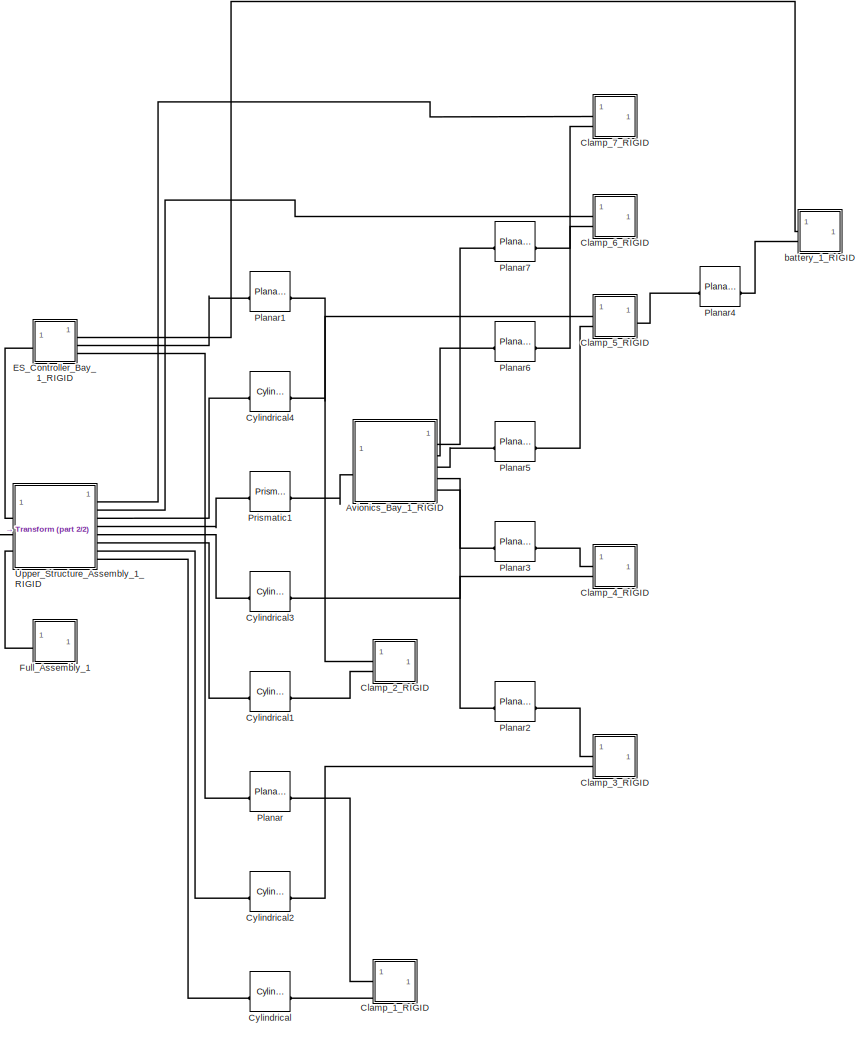
[diagram: root canvas - part 1/2, right side, full height]
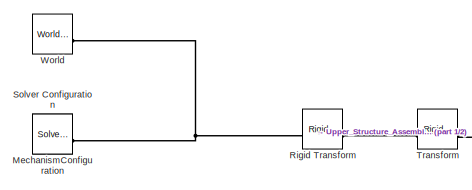
[diagram: root canvas - part 2/2, middle left region]
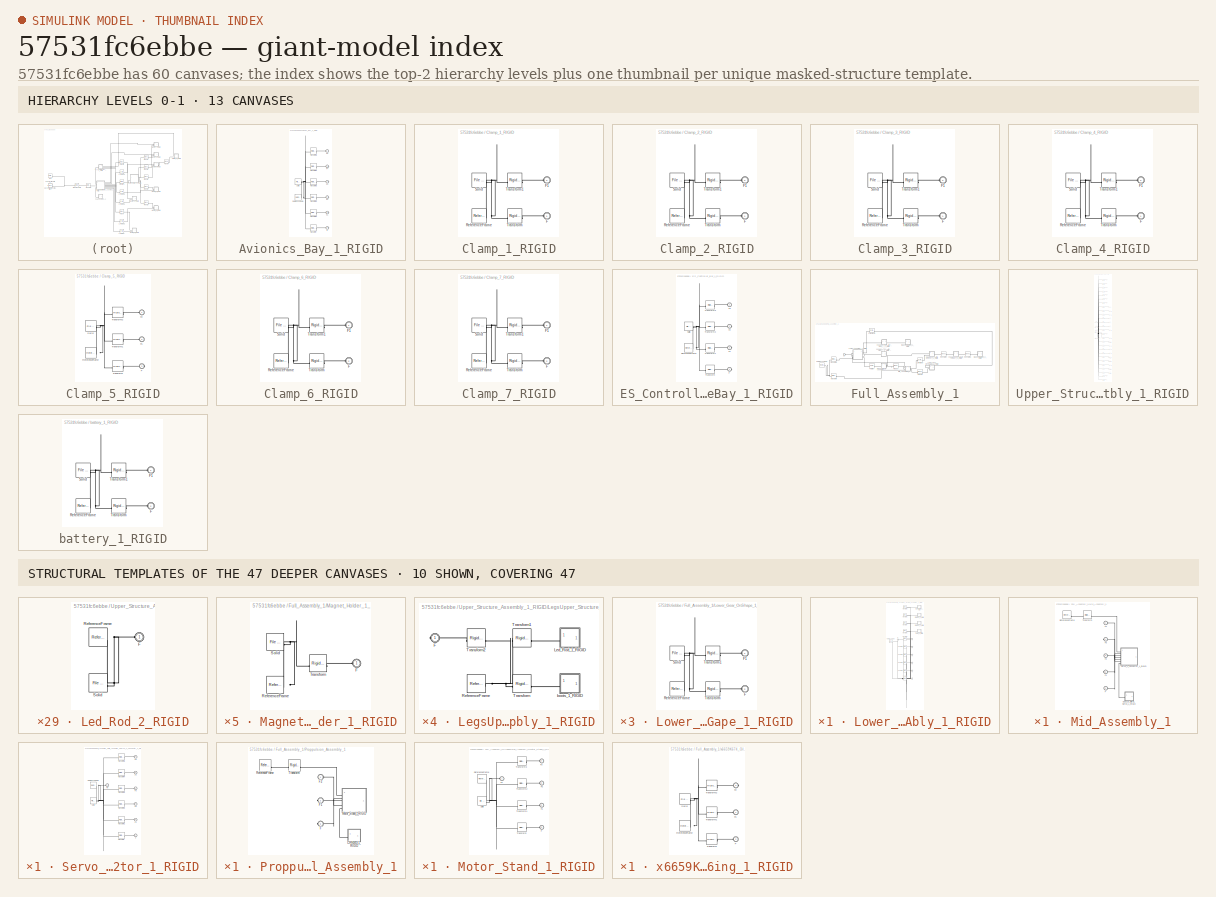
[diagram: thumbnail index - top-2 hierarchy levels (13 canvases) + 10 structural-template representatives of the remaining 47 canvases]
MODEL slx_57531fc6ebbe
KIND model
CONFIG AbsTol = auto
CONFIG EnableMultiTasking = off
CONFIG FixedStep = auto
CONFIG MaxStep = auto
CONFIG MinStep = auto
CONFIG RelTol = 1e-3
CONFIG SampleTimeConstraint = Unconstrained
CONFIG SolverName = VariableStepAuto
CONFIG StartTime = 0.0
CONFIG StopTime = 10.0
WORKSPACE source: external: MATLAB File  (data not in archive)
BLOCK [SubSystem] Avionics_Bay_1_RIGID
BLOCK [PMIOPort] Avionics_Bay_1_RIGID/F
  Port = 6
  Side = Right
BLOCK [PMIOPort] Avionics_Bay_1_RIGID/F1
  Port = 5
  Side = Right
BLOCK [PMIOPort] Avionics_Bay_1_RIGID/F2
  Port = 4
  Side = Right
BLOCK [PMIOPort] Avionics_Bay_1_RIGID/F3
  Port = 3
  Side = Right
BLOCK [PMIOPort] Avionics_Bay_1_RIGID/F4
  Port = 2
  Side = Right
BLOCK [PMIOPort] Avionics_Bay_1_RIGID/F5
  Side = Left
BLOCK [Reference] Avionics_Bay_1_RIGID/ReferenceFrame  REF=sm_lib/Frames and
Transforms/Reference
Frame
  SourceBlock = sm_lib/Frames and\nTransforms/Reference\nFrame
  SourceType = Reference\nFrame
BLOCK [Reference] Avionics_Bay_1_RIGID/Solid  REF=sm_lib/Body Elements/File Solid
  SourceBlock = sm_lib/Body Elements/File Solid
  SourceType = File Solid
BLOCK [Reference] Avionics_Bay_1_RIGID/Transform  REF=sm_lib/Frames and
Transforms/Rigid
Transform
  SourceBlock = sm_lib/Frames and\nTransforms/Rigid\nTransform
  SourceType = Rigid\nTransform
BLOCK [Reference] Avionics_Bay_1_RIGID/Transform1  REF=sm_lib/Frames and
Transforms/Rigid
Transform
  SourceBlock = sm_lib/Frames and\nTransforms/Rigid\nTransform
  SourceType = Rigid\nTransform
BLOCK [Reference] Avionics_Bay_1_RIGID/Transform2  REF=sm_lib/Frames and
Transforms/Rigid
Transform
  SourceBlock = sm_lib/Frames and\nTransforms/Rigid\nTransform
  SourceType = Rigid\nTransform
BLOCK [Reference] Avionics_Bay_1_RIGID/Transform3  REF=sm_lib/Frames and
Transforms/Rigid
Transform
  SourceBlock = sm_lib/Frames and\nTransforms/Rigid\nTransform
  SourceType = Rigid\nTransform
BLOCK [Reference] Avionics_Bay_1_RIGID/Transform4  REF=sm_lib/Frames and
Transforms/Rigid
Transform
  SourceBlock = sm_lib/Frames and\nTransforms/Rigid\nTransform
  SourceType = Rigid\nTransform
BLOCK [Reference] Avionics_Bay_1_RIGID/Transform5  REF=sm_lib/Frames and
Transforms/Rigid
Transform
  SourceBlock = sm_lib/Frames and\nTransforms/Rigid\nTransform
  SourceType = Rigid\nTransform
BLOCK [SubSystem] Clamp_1_RIGID
BLOCK [PMIOPort] Clamp_1_RIGID/F
  Side = Left
BLOCK [PMIOPort] Clamp_1_RIGID/F1
  Port = 2
  Side = Left
BLOCK [Reference] Clamp_1_RIGID/ReferenceFrame  REF=sm_lib/Frames and
Transforms/Reference
Frame
  SourceBlock = sm_lib/Frames and\nTransforms/Reference\nFrame
  SourceType = Reference\nFrame
BLOCK [Reference] Clamp_1_RIGID/Solid  REF=sm_lib/Body Elements/File Solid
  SourceBlock = sm_lib/Body Elements/File Solid
  SourceType = File Solid
BLOCK [Reference] Clamp_1_RIGID/Transform  REF=sm_lib/Frames and
Transforms/Rigid
Transform
  SourceBlock = sm_lib/Frames and\nTransforms/Rigid\nTransform
  SourceType = Rigid\nTransform
BLOCK [Reference] Clamp_1_RIGID/Transform1  REF=sm_lib/Frames and
Transforms/Rigid
Transform
  SourceBlock = sm_lib/Frames and\nTransforms/Rigid\nTransform
  SourceType = Rigid\nTransform
BLOCK [SubSystem] Clamp_2_RIGID
BLOCK [PMIOPort] Clamp_2_RIGID/F
  Side = Left
BLOCK [PMIOPort] Clamp_2_RIGID/F1
  Port = 2
  Side = Left
BLOCK [Reference] Clamp_2_RIGID/ReferenceFrame  REF=sm_lib/Frames and
Transforms/Reference
Frame
  SourceBlock = sm_lib/Frames and\nTransforms/Reference\nFrame
  SourceType = Reference\nFrame
BLOCK [Reference] Clamp_2_RIGID/Solid  REF=sm_lib/Body Elements/File Solid
  SourceBlock = sm_lib/Body Elements/File Solid
  SourceType = File Solid
BLOCK [Reference] Clamp_2_RIGID/Transform  REF=sm_lib/Frames and
Transforms/Rigid
Transform
  SourceBlock = sm_lib/Frames and\nTransforms/Rigid\nTransform
  SourceType = Rigid\nTransform
BLOCK [Reference] Clamp_2_RIGID/Transform1  REF=sm_lib/Frames and
Transforms/Rigid
Transform
  SourceBlock = sm_lib/Frames and\nTransforms/Rigid\nTransform
  SourceType = Rigid\nTransform
BLOCK [SubSystem] Clamp_3_RIGID
BLOCK [PMIOPort] Clamp_3_RIGID/F
  Side = Left
BLOCK [PMIOPort] Clamp_3_RIGID/F1
  Port = 2
  Side = Left
BLOCK [Reference] Clamp_3_RIGID/ReferenceFrame  REF=sm_lib/Frames and
Transforms/Reference
Frame
  SourceBlock = sm_lib/Frames and\nTransforms/Reference\nFrame
  SourceType = Reference\nFrame
BLOCK [Reference] Clamp_3_RIGID/Solid  REF=sm_lib/Body Elements/File Solid
  SourceBlock = sm_lib/Body Elements/File Solid
  SourceType = File Solid
BLOCK [Reference] Clamp_3_RIGID/Transform  REF=sm_lib/Frames and
Transforms/Rigid
Transform
  SourceBlock = sm_lib/Frames and\nTransforms/Rigid\nTransform
  SourceType = Rigid\nTransform
BLOCK [Reference] Clamp_3_RIGID/Transform1  REF=sm_lib/Frames and
Transforms/Rigid
Transform
  SourceBlock = sm_lib/Frames and\nTransforms/Rigid\nTransform
  SourceType = Rigid\nTransform
BLOCK [SubSystem] Clamp_4_RIGID
BLOCK [PMIOPort] Clamp_4_RIGID/F
  Side = Left
BLOCK [PMIOPort] Clamp_4_RIGID/F1
  Port = 2
  Side = Left
BLOCK [Reference] Clamp_4_RIGID/ReferenceFrame  REF=sm_lib/Frames and
Transforms/Reference
Frame
  SourceBlock = sm_lib/Frames and\nTransforms/Reference\nFrame
  SourceType = Reference\nFrame
BLOCK [Reference] Clamp_4_RIGID/Solid  REF=sm_lib/Body Elements/File Solid
  SourceBlock = sm_lib/Body Elements/File Solid
  SourceType = File Solid
BLOCK [Reference] Clamp_4_RIGID/Transform  REF=sm_lib/Frames and
Transforms/Rigid
Transform
  SourceBlock = sm_lib/Frames and\nTransforms/Rigid\nTransform
  SourceType = Rigid\nTransform
BLOCK [Reference] Clamp_4_RIGID/Transform1  REF=sm_lib/Frames and
Transforms/Rigid
Transform
  SourceBlock = sm_lib/Frames and\nTransforms/Rigid\nTransform
  SourceType = Rigid\nTransform
BLOCK [SubSystem] Clamp_5_RIGID
BLOCK [PMIOPort] Clamp_5_RIGID/F
  Port = 3
  Side = Right
BLOCK [PMIOPort] Clamp_5_RIGID/F1
  Port = 2
  Side = Left
BLOCK [PMIOPort] Clamp_5_RIGID/F2
  Side = Left
BLOCK [Reference] Clamp_5_RIGID/ReferenceFrame  REF=sm_lib/Frames and
Transforms/Reference
Frame
  SourceBlock = sm_lib/Frames and\nTransforms/Reference\nFrame
  SourceType = Reference\nFrame
BLOCK [Reference] Clamp_5_RIGID/Solid  REF=sm_lib/Body Elements/File Solid
  SourceBlock = sm_lib/Body Elements/File Solid
  SourceType = File Solid
BLOCK [Reference] Clamp_5_RIGID/Transform  REF=sm_lib/Frames and
Transforms/Rigid
Transform
  SourceBlock = sm_lib/Frames and\nTransforms/Rigid\nTransform
  SourceType = Rigid\nTransform
BLOCK [Reference] Clamp_5_RIGID/Transform1  REF=sm_lib/Frames and
Transforms/Rigid
Transform
  SourceBlock = sm_lib/Frames and\nTransforms/Rigid\nTransform
  SourceType = Rigid\nTransform
BLOCK [Reference] Clamp_5_RIGID/Transform2  REF=sm_lib/Frames and
Transforms/Rigid
Transform
  SourceBlock = sm_lib/Frames and\nTransforms/Rigid\nTransform
  SourceType = Rigid\nTransform
BLOCK [SubSystem] Clamp_6_RIGID
BLOCK [PMIOPort] Clamp_6_RIGID/F
  Port = 2
  Side = Left
BLOCK [PMIOPort] Clamp_6_RIGID/F1
  Side = Left
BLOCK [Reference] Clamp_6_RIGID/ReferenceFrame  REF=sm_lib/Frames and
Transforms/Reference
Frame
  SourceBlock = sm_lib/Frames and\nTransforms/Reference\nFrame
  SourceType = Reference\nFrame
BLOCK [Reference] Clamp_6_RIGID/Solid  REF=sm_lib/Body Elements/File Solid
  SourceBlock = sm_lib/Body Elements/File Solid
  SourceType = File Solid
BLOCK [Reference] Clamp_6_RIGID/Transform  REF=sm_lib/Frames and
Transforms/Rigid
Transform
  SourceBlock = sm_lib/Frames and\nTransforms/Rigid\nTransform
  SourceType = Rigid\nTransform
BLOCK [Reference] Clamp_6_RIGID/Transform1  REF=sm_lib/Frames and
Transforms/Rigid
Transform
  SourceBlock = sm_lib/Frames and\nTransforms/Rigid\nTransform
  SourceType = Rigid\nTransform
BLOCK [SubSystem] Clamp_7_RIGID
BLOCK [PMIOPort] Clamp_7_RIGID/F
  Port = 2
  Side = Left
BLOCK [PMIOPort] Clamp_7_RIGID/F1
  Side = Left
BLOCK [Reference] Clamp_7_RIGID/ReferenceFrame  REF=sm_lib/Frames and
Transforms/Reference
Frame
  SourceBlock = sm_lib/Frames and\nTransforms/Reference\nFrame
  SourceType = Reference\nFrame
BLOCK [Reference] Clamp_7_RIGID/Solid  REF=sm_lib/Body Elements/File Solid
  SourceBlock = sm_lib/Body Elements/File Solid
  SourceType = File Solid
BLOCK [Reference] Clamp_7_RIGID/Transform  REF=sm_lib/Frames and
Transforms/Rigid
Transform
  SourceBlock = sm_lib/Frames and\nTransforms/Rigid\nTransform
  SourceType = Rigid\nTransform
BLOCK [Reference] Clamp_7_RIGID/Transform1  REF=sm_lib/Frames and
Transforms/Rigid
Transform
  SourceBlock = sm_lib/Frames and\nTransforms/Rigid\nTransform
  SourceType = Rigid\nTransform
BLOCK [Reference] Cylindrical  REF=sm_lib/Joints/Cylindrical
Joint
  SourceBlock = sm_lib/Joints/Cylindrical\nJoint
  SourceType = Cylindrical\nJoint
BLOCK [Reference] Cylindrical1  REF=sm_lib/Joints/Cylindrical
Joint
  SourceBlock = sm_lib/Joints/Cylindrical\nJoint
  SourceType = Cylindrical\nJoint
BLOCK [Reference] Cylindrical2  REF=sm_lib/Joints/Cylindrical
Joint
  SourceBlock = sm_lib/Joints/Cylindrical\nJoint
  SourceType = Cylindrical\nJoint
BLOCK [Reference] Cylindrical3  REF=sm_lib/Joints/Cylindrical
Joint
  SourceBlock = sm_lib/Joints/Cylindrical\nJoint
  SourceType = Cylindrical\nJoint
BLOCK [Reference] Cylindrical4  REF=sm_lib/Joints/Cylindrical
Joint
  SourceBlock = sm_lib/Joints/Cylindrical\nJoint
  SourceType = Cylindrical\nJoint
BLOCK [SubSystem] ES_Controller_Bay_1_RIGID
BLOCK [PMIOPort] ES_Controller_Bay_1_RIGID/F
  Port = 4
  Side = Right
BLOCK [PMIOPort] ES_Controller_Bay_1_RIGID/F1
  Port = 3
  Side = Right
BLOCK [PMIOPort] ES_Controller_Bay_1_RIGID/F2
  Port = 2
  Side = Right
BLOCK [PMIOPort] ES_Controller_Bay_1_RIGID/F3
  Side = Left
BLOCK [Reference] ES_Controller_Bay_1_RIGID/ReferenceFrame  REF=sm_lib/Frames and
Transforms/Reference
Frame
  SourceBlock = sm_lib/Frames and\nTransforms/Reference\nFrame
  SourceType = Reference\nFrame
BLOCK [Reference] ES_Controller_Bay_1_RIGID/Solid  REF=sm_lib/Body Elements/File Solid
  SourceBlock = sm_lib/Body Elements/File Solid
  SourceType = File Solid
BLOCK [Reference] ES_Controller_Bay_1_RIGID/Transform  REF=sm_lib/Frames and
Transforms/Rigid
Transform
  SourceBlock = sm_lib/Frames and\nTransforms/Rigid\nTransform
  SourceType = Rigid\nTransform
BLOCK [Reference] ES_Controller_Bay_1_RIGID/Transform1  REF=sm_lib/Frames and
Transforms/Rigid
Transform
  SourceBlock = sm_lib/Frames and\nTransforms/Rigid\nTransform
  SourceType = Rigid\nTransform
BLOCK [Reference] ES_Controller_Bay_1_RIGID/Transform2  REF=sm_lib/Frames and
Transforms/Rigid
Transform
  SourceBlock = sm_lib/Frames and\nTransforms/Rigid\nTransform
  SourceType = Rigid\nTransform
BLOCK [Reference] ES_Controller_Bay_1_RIGID/Transform3  REF=sm_lib/Frames and
Transforms/Rigid
Transform
  SourceBlock = sm_lib/Frames and\nTransforms/Rigid\nTransform
  SourceType = Rigid\nTransform
BLOCK [SubSystem] Full_Assembly_1
BLOCK [Reference] Full_Assembly_1/Cylindrical  REF=sm_lib/Joints/Cylindrical
Joint
  SourceBlock = sm_lib/Joints/Cylindrical\nJoint
  SourceType = Cylindrical\nJoint
BLOCK [Reference] Full_Assembly_1/Cylindrical1  REF=sm_lib/Joints/Cylindrical
Joint
  SourceBlock = sm_lib/Joints/Cylindrical\nJoint
  SourceType = Cylindrical\nJoint
BLOCK [PMIOPort] Full_Assembly_1/F
  Side = Left
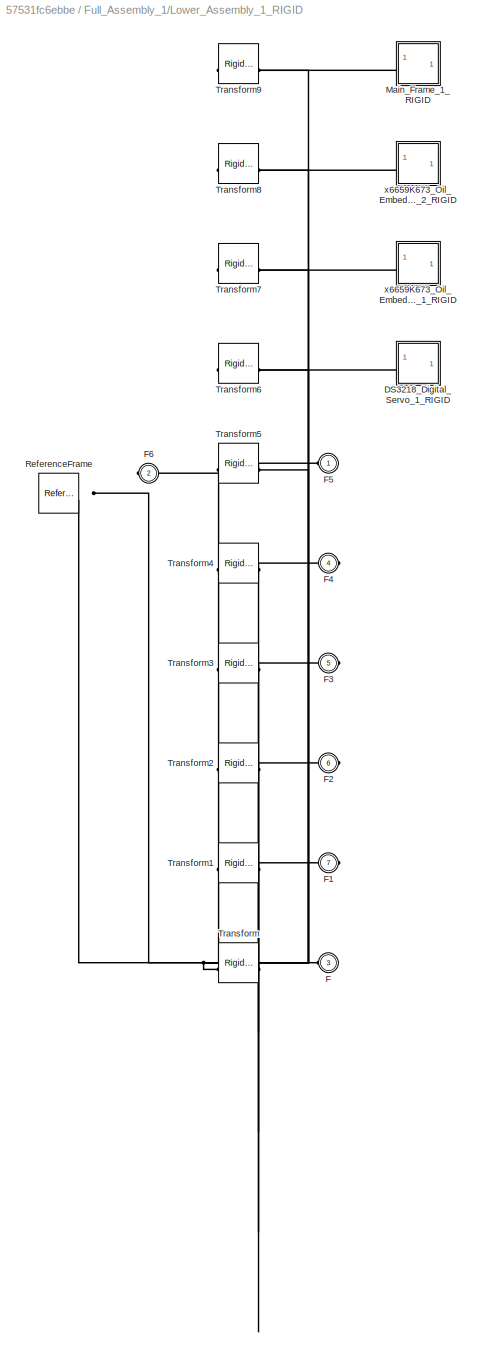
BLOCK [SubSystem] Full_Assembly_1/Lower_Assembly_1_RIGID
BLOCK [SubSystem] Full_Assembly_1/Lower_Assembly_1_RIGID/DS3218_Digital_Servo_1_RIGID
BLOCK [PMIOPort] Full_Assembly_1/Lower_Assembly_1_RIGID/DS3218_Digital_Servo_1_RIGID/F
  Side = Left
BLOCK [Reference] Full_Assembly_1/Lower_Assembly_1_RIGID/DS3218_Digital_Servo_1_RIGID/ReferenceFrame  REF=sm_lib/Frames and
Transforms/Reference
Frame
  SourceBlock = sm_lib/Frames and\nTransforms/Reference\nFrame
  SourceType = Reference\nFrame
BLOCK [Reference] Full_Assembly_1/Lower_Assembly_1_RIGID/DS3218_Digital_Servo_1_RIGID/Solid  REF=sm_lib/Body Elements/File Solid
  SourceBlock = sm_lib/Body Elements/File Solid
  SourceType = File Solid
BLOCK [PMIOPort] Full_Assembly_1/Lower_Assembly_1_RIGID/F
  Port = 3
  Side = Left
BLOCK [PMIOPort] Full_Assembly_1/Lower_Assembly_1_RIGID/F1
  Port = 7
  Side = Right
BLOCK [PMIOPort] Full_Assembly_1/Lower_Assembly_1_RIGID/F2
  Port = 6
  Side = Right
BLOCK [PMIOPort] Full_Assembly_1/Lower_Assembly_1_RIGID/F3
  Port = 5
  Side = Right
BLOCK [PMIOPort] Full_Assembly_1/Lower_Assembly_1_RIGID/F4
  Port = 4
  Side = Right
BLOCK [PMIOPort] Full_Assembly_1/Lower_Assembly_1_RIGID/F5
  Side = Left
BLOCK [PMIOPort] Full_Assembly_1/Lower_Assembly_1_RIGID/F6
  Port = 2
  Side = Left
BLOCK [SubSystem] Full_Assembly_1/Lower_Assembly_1_RIGID/Main_Frame_1_RIGID
BLOCK [PMIOPort] Full_Assembly_1/Lower_Assembly_1_RIGID/Main_Frame_1_RIGID/F
  Side = Left
BLOCK [Reference] Full_Assembly_1/Lower_Assembly_1_RIGID/Main_Frame_1_RIGID/ReferenceFrame  REF=sm_lib/Frames and
Transforms/Reference
Frame
  SourceBlock = sm_lib/Frames and\nTransforms/Reference\nFrame
  SourceType = Reference\nFrame
BLOCK [Reference] Full_Assembly_1/Lower_Assembly_1_RIGID/Main_Frame_1_RIGID/Solid  REF=sm_lib/Body Elements/File Solid
  SourceBlock = sm_lib/Body Elements/File Solid
  SourceType = File Solid
BLOCK [Reference] Full_Assembly_1/Lower_Assembly_1_RIGID/ReferenceFrame  REF=sm_lib/Frames and
Transforms/Reference
Frame
  SourceBlock = sm_lib/Frames and\nTransforms/Reference\nFrame
  SourceType = Reference\nFrame
BLOCK [Reference] Full_Assembly_1/Lower_Assembly_1_RIGID/Transform  REF=sm_lib/Frames and
Transforms/Rigid
Transform
  SourceBlock = sm_lib/Frames and\nTransforms/Rigid\nTransform
  SourceType = Rigid\nTransform
BLOCK [Reference] Full_Assembly_1/Lower_Assembly_1_RIGID/Transform1  REF=sm_lib/Frames and
Transforms/Rigid
Transform
  SourceBlock = sm_lib/Frames and\nTransforms/Rigid\nTransform
  SourceType = Rigid\nTransform
BLOCK [Reference] Full_Assembly_1/Lower_Assembly_1_RIGID/Transform2  REF=sm_lib/Frames and
Transforms/Rigid
Transform
  SourceBlock = sm_lib/Frames and\nTransforms/Rigid\nTransform
  SourceType = Rigid\nTransform
BLOCK [Reference] Full_Assembly_1/Lower_Assembly_1_RIGID/Transform3  REF=sm_lib/Frames and
Transforms/Rigid
Transform
  SourceBlock = sm_lib/Frames and\nTransforms/Rigid\nTransform
  SourceType = Rigid\nTransform
BLOCK [Reference] Full_Assembly_1/Lower_Assembly_1_RIGID/Transform4  REF=sm_lib/Frames and
Transforms/Rigid
Transform
  SourceBlock = sm_lib/Frames and\nTransforms/Rigid\nTransform
  SourceType = Rigid\nTransform
BLOCK [Reference] Full_Assembly_1/Lower_Assembly_1_RIGID/Transform5  REF=sm_lib/Frames and
Transforms/Rigid
Transform
  SourceBlock = sm_lib/Frames and\nTransforms/Rigid\nTransform
  SourceType = Rigid\nTransform
BLOCK [Reference] Full_Assembly_1/Lower_Assembly_1_RIGID/Transform6  REF=sm_lib/Frames and
Transforms/Rigid
Transform
  SourceBlock = sm_lib/Frames and\nTransforms/Rigid\nTransform
  SourceType = Rigid\nTransform
BLOCK [Reference] Full_Assembly_1/Lower_Assembly_1_RIGID/Transform7  REF=sm_lib/Frames and
Transforms/Rigid
Transform
  SourceBlock = sm_lib/Frames and\nTransforms/Rigid\nTransform
  SourceType = Rigid\nTransform
BLOCK [Reference] Full_Assembly_1/Lower_Assembly_1_RIGID/Transform8  REF=sm_lib/Frames and
Transforms/Rigid
Transform
  SourceBlock = sm_lib/Frames and\nTransforms/Rigid\nTransform
  SourceType = Rigid\nTransform
BLOCK [Reference] Full_Assembly_1/Lower_Assembly_1_RIGID/Transform9  REF=sm_lib/Frames and
Transforms/Rigid
Transform
  SourceBlock = sm_lib/Frames and\nTransforms/Rigid\nTransform
  SourceType = Rigid\nTransform
BLOCK [SubSystem] Full_Assembly_1/Lower_Assembly_1_RIGID/x6659K673_Oil_Embedded_Flanged_Sleeve_Bearing_1_RIGID
BLOCK [PMIOPort] Full_Assembly_1/Lower_Assembly_1_RIGID/x6659K673_Oil_Embedded_Flanged_Sleeve_Bearing_1_RIGID/F
  Side = Left
BLOCK [Reference] Full_Assembly_1/Lower_Assembly_1_RIGID/x6659K673_Oil_Embedded_Flanged_Sleeve_Bearing_1_RIGID/ReferenceFrame  REF=sm_lib/Frames and
Transforms/Reference
Frame
  SourceBlock = sm_lib/Frames and\nTransforms/Reference\nFrame
  SourceType = Reference\nFrame
BLOCK [Reference] Full_Assembly_1/Lower_Assembly_1_RIGID/x6659K673_Oil_Embedded_Flanged_Sleeve_Bearing_1_RIGID/Solid  REF=sm_lib/Body Elements/File Solid
  SourceBlock = sm_lib/Body Elements/File Solid
  SourceType = File Solid
BLOCK [SubSystem] Full_Assembly_1/Lower_Assembly_1_RIGID/x6659K673_Oil_Embedded_Flanged_Sleeve_Bearing_2_RIGID
BLOCK [PMIOPort] Full_Assembly_1/Lower_Assembly_1_RIGID/x6659K673_Oil_Embedded_Flanged_Sleeve_Bearing_2_RIGID/F
  Side = Left
BLOCK [Reference] Full_Assembly_1/Lower_Assembly_1_RIGID/x6659K673_Oil_Embedded_Flanged_Sleeve_Bearing_2_RIGID/ReferenceFrame  REF=sm_lib/Frames and
Transforms/Reference
Frame
  SourceBlock = sm_lib/Frames and\nTransforms/Reference\nFrame
  SourceType = Reference\nFrame
BLOCK [Reference] Full_Assembly_1/Lower_Assembly_1_RIGID/x6659K673_Oil_Embedded_Flanged_Sleeve_Bearing_2_RIGID/Solid  REF=sm_lib/Body Elements/File Solid
  SourceBlock = sm_lib/Body Elements/File Solid
  SourceType = File Solid
BLOCK [SubSystem] Full_Assembly_1/Lower_Gear_OnShape_1_RIGID
BLOCK [PMIOPort] Full_Assembly_1/Lower_Gear_OnShape_1_RIGID/F
  Port = 2
  Side = Left
BLOCK [PMIOPort] Full_Assembly_1/Lower_Gear_OnShape_1_RIGID/F1
  Side = Left
BLOCK [Reference] Full_Assembly_1/Lower_Gear_OnShape_1_RIGID/ReferenceFrame  REF=sm_lib/Frames and
Transforms/Reference
Frame
  SourceBlock = sm_lib/Frames and\nTransforms/Reference\nFrame
  SourceType = Reference\nFrame
BLOCK [Reference] Full_Assembly_1/Lower_Gear_OnShape_1_RIGID/Solid  REF=sm_lib/Body Elements/File Solid
  SourceBlock = sm_lib/Body Elements/File Solid
  SourceType = File Solid
BLOCK [Reference] Full_Assembly_1/Lower_Gear_OnShape_1_RIGID/Transform  REF=sm_lib/Frames and
Transforms/Rigid
Transform
  SourceBlock = sm_lib/Frames and\nTransforms/Rigid\nTransform
  SourceType = Rigid\nTransform
BLOCK [Reference] Full_Assembly_1/Lower_Gear_OnShape_1_RIGID/Transform1  REF=sm_lib/Frames and
Transforms/Rigid
Transform
  SourceBlock = sm_lib/Frames and\nTransforms/Rigid\nTransform
  SourceType = Rigid\nTransform
BLOCK [SubSystem] Full_Assembly_1/Magnet_Holder_1_RIGID
BLOCK [PMIOPort] Full_Assembly_1/Magnet_Holder_1_RIGID/F
  Side = Left
BLOCK [Reference] Full_Assembly_1/Magnet_Holder_1_RIGID/ReferenceFrame  REF=sm_lib/Frames and
Transforms/Reference
Frame
  SourceBlock = sm_lib/Frames and\nTransforms/Reference\nFrame
  SourceType = Reference\nFrame
BLOCK [Reference] Full_Assembly_1/Magnet_Holder_1_RIGID/Solid  REF=sm_lib/Body Elements/File Solid
  SourceBlock = sm_lib/Body Elements/File Solid
  SourceType = File Solid
BLOCK [Reference] Full_Assembly_1/Magnet_Holder_1_RIGID/Transform  REF=sm_lib/Frames and
Transforms/Rigid
Transform
  SourceBlock = sm_lib/Frames and\nTransforms/Rigid\nTransform
  SourceType = Rigid\nTransform
BLOCK [SubSystem] Full_Assembly_1/Magnet_Holder_2_RIGID
BLOCK [PMIOPort] Full_Assembly_1/Magnet_Holder_2_RIGID/F
  Side = Left
BLOCK [Reference] Full_Assembly_1/Magnet_Holder_2_RIGID/ReferenceFrame  REF=sm_lib/Frames and
Transforms/Reference
Frame
  SourceBlock = sm_lib/Frames and\nTransforms/Reference\nFrame
  SourceType = Reference\nFrame
BLOCK [Reference] Full_Assembly_1/Magnet_Holder_2_RIGID/Solid  REF=sm_lib/Body Elements/File Solid
  SourceBlock = sm_lib/Body Elements/File Solid
  SourceType = File Solid
BLOCK [Reference] Full_Assembly_1/Magnet_Holder_2_RIGID/Transform  REF=sm_lib/Frames and
Transforms/Rigid
Transform
  SourceBlock = sm_lib/Frames and\nTransforms/Rigid\nTransform
  SourceType = Rigid\nTransform
BLOCK [SubSystem] Full_Assembly_1/Mid_Assembly_1
BLOCK [SubSystem] Full_Assembly_1/Mid_Assembly_1/DS3218_Digital_Servo_1_RIGID
BLOCK [PMIOPort] Full_Assembly_1/Mid_Assembly_1/DS3218_Digital_Servo_1_RIGID/F
  Side = Left
BLOCK [Reference] Full_Assembly_1/Mid_Assembly_1/DS3218_Digital_Servo_1_RIGID/ReferenceFrame  REF=sm_lib/Frames and
Transforms/Reference
Frame
  SourceBlock = sm_lib/Frames and\nTransforms/Reference\nFrame
  SourceType = Reference\nFrame
BLOCK [Reference] Full_Assembly_1/Mid_Assembly_1/DS3218_Digital_Servo_1_RIGID/Solid  REF=sm_lib/Body Elements/File Solid
  SourceBlock = sm_lib/Body Elements/File Solid
  SourceType = File Solid
BLOCK [Reference] Full_Assembly_1/Mid_Assembly_1/DS3218_Digital_Servo_1_RIGID/Transform  REF=sm_lib/Frames and
Transforms/Rigid
Transform
  SourceBlock = sm_lib/Frames and\nTransforms/Rigid\nTransform
  SourceType = Rigid\nTransform
BLOCK [PMIOPort] Full_Assembly_1/Mid_Assembly_1/F
  Port = 2
  Side = Left
BLOCK [PMIOPort] Full_Assembly_1/Mid_Assembly_1/F1
  Port = 5
  Side = Right
BLOCK [PMIOPort] Full_Assembly_1/Mid_Assembly_1/F2
  Port = 3
  Side = Left
BLOCK [PMIOPort] Full_Assembly_1/Mid_Assembly_1/F3
  Port = 4
  Side = Right
BLOCK [PMIOPort] Full_Assembly_1/Mid_Assembly_1/F4
  Side = Left
BLOCK [Reference] Full_Assembly_1/Mid_Assembly_1/ReferenceFrame  REF=sm_lib/Frames and
Transforms/Reference
Frame
  SourceBlock = sm_lib/Frames and\nTransforms/Reference\nFrame
  SourceType = Reference\nFrame
BLOCK [SubSystem] Full_Assembly_1/Mid_Assembly_1/Servo_2_Connector_1_RIGID
BLOCK [PMIOPort] Full_Assembly_1/Mid_Assembly_1/Servo_2_Connector_1_RIGID/F
  Port = 7
  Side = Left
BLOCK [PMIOPort] Full_Assembly_1/Mid_Assembly_1/Servo_2_Connector_1_RIGID/F1
  Port = 2
  Side = Left
BLOCK [PMIOPort] Full_Assembly_1/Mid_Assembly_1/Servo_2_Connector_1_RIGID/F2
  Port = 3
  Side = Left
BLOCK [PMIOPort] Full_Assembly_1/Mid_Assembly_1/Servo_2_Connector_1_RIGID/F3
  Port = 4
  Side = Left
BLOCK [PMIOPort] Full_Assembly_1/Mid_Assembly_1/Servo_2_Connector_1_RIGID/F4
  Port = 5
  Side = Left
BLOCK [PMIOPort] Full_Assembly_1/Mid_Assembly_1/Servo_2_Connector_1_RIGID/F5
  Port = 6
  Side = Left
BLOCK [PMIOPort] Full_Assembly_1/Mid_Assembly_1/Servo_2_Connector_1_RIGID/F6
  Side = Left
BLOCK [Reference] Full_Assembly_1/Mid_Assembly_1/Servo_2_Connector_1_RIGID/ReferenceFrame  REF=sm_lib/Frames and
Transforms/Reference
Frame
  SourceBlock = sm_lib/Frames and\nTransforms/Reference\nFrame
  SourceType = Reference\nFrame
BLOCK [Reference] Full_Assembly_1/Mid_Assembly_1/Servo_2_Connector_1_RIGID/Solid  REF=sm_lib/Body Elements/File Solid
  SourceBlock = sm_lib/Body Elements/File Solid
  SourceType = File Solid
BLOCK [Reference] Full_Assembly_1/Mid_Assembly_1/Servo_2_Connector_1_RIGID/Transform  REF=sm_lib/Frames and
Transforms/Rigid
Transform
  SourceBlock = sm_lib/Frames and\nTransforms/Rigid\nTransform
  SourceType = Rigid\nTransform
BLOCK [Reference] Full_Assembly_1/Mid_Assembly_1/Servo_2_Connector_1_RIGID/Transform1  REF=sm_lib/Frames and
Transforms/Rigid
Transform
  SourceBlock = sm_lib/Frames and\nTransforms/Rigid\nTransform
  SourceType = Rigid\nTransform
BLOCK [Reference] Full_Assembly_1/Mid_Assembly_1/Servo_2_Connector_1_RIGID/Transform2  REF=sm_lib/Frames and
Transforms/Rigid
Transform
  SourceBlock = sm_lib/Frames and\nTransforms/Rigid\nTransform
  SourceType = Rigid\nTransform
BLOCK [Reference] Full_Assembly_1/Mid_Assembly_1/Servo_2_Connector_1_RIGID/Transform3  REF=sm_lib/Frames and
Transforms/Rigid
Transform
  SourceBlock = sm_lib/Frames and\nTransforms/Rigid\nTransform
  SourceType = Rigid\nTransform
BLOCK [Reference] Full_Assembly_1/Mid_Assembly_1/Servo_2_Connector_1_RIGID/Transform4  REF=sm_lib/Frames and
Transforms/Rigid
Transform
  SourceBlock = sm_lib/Frames and\nTransforms/Rigid\nTransform
  SourceType = Rigid\nTransform
BLOCK [Reference] Full_Assembly_1/Mid_Assembly_1/Servo_2_Connector_1_RIGID/Transform5  REF=sm_lib/Frames and
Transforms/Rigid
Transform
  SourceBlock = sm_lib/Frames and\nTransforms/Rigid\nTransform
  SourceType = Rigid\nTransform
BLOCK [Reference] Full_Assembly_1/Mid_Assembly_1/Transform  REF=sm_lib/Frames and
Transforms/Rigid
Transform
  SourceBlock = sm_lib/Frames and\nTransforms/Rigid\nTransform
  SourceType = Rigid\nTransform
BLOCK [Reference] Full_Assembly_1/Parallel  REF=sm_lib/Constraints/Angle
Constraint
  SourceBlock = sm_lib/Constraints/Angle\nConstraint
  SourceType = Angle\nConstraint
BLOCK [Reference] Full_Assembly_1/Planar  REF=sm_lib/Joints/Planar Joint
  SourceBlock = sm_lib/Joints/Planar Joint
  SourceType = Planar Joint
BLOCK [Reference] Full_Assembly_1/Planar1  REF=sm_lib/Joints/Planar Joint
  SourceBlock = sm_lib/Joints/Planar Joint
  SourceType = Planar Joint
BLOCK [SubSystem] Full_Assembly_1/Proppulsion_Assembly_1
BLOCK [SubSystem] Full_Assembly_1/Proppulsion_Assembly_1/CRM2413_1_RIGID
BLOCK [PMIOPort] Full_Assembly_1/Proppulsion_Assembly_1/CRM2413_1_RIGID/F
  Side = Left
BLOCK [Reference] Full_Assembly_1/Proppulsion_Assembly_1/CRM2413_1_RIGID/ReferenceFrame  REF=sm_lib/Frames and
Transforms/Reference
Frame
  SourceBlock = sm_lib/Frames and\nTransforms/Reference\nFrame
  SourceType = Reference\nFrame
BLOCK [Reference] Full_Assembly_1/Proppulsion_Assembly_1/CRM2413_1_RIGID/Solid  REF=sm_lib/Body Elements/File Solid
  SourceBlock = sm_lib/Body Elements/File Solid
  SourceType = File Solid
BLOCK [Reference] Full_Assembly_1/Proppulsion_Assembly_1/CRM2413_1_RIGID/Transform  REF=sm_lib/Frames and
Transforms/Rigid
Transform
  SourceBlock = sm_lib/Frames and\nTransforms/Rigid\nTransform
  SourceType = Rigid\nTransform
BLOCK [PMIOPort] Full_Assembly_1/Proppulsion_Assembly_1/F
  Port = 3
  Side = Right
BLOCK [PMIOPort] Full_Assembly_1/Proppulsion_Assembly_1/F1
  Port = 2
  Side = Right
BLOCK [PMIOPort] Full_Assembly_1/Proppulsion_Assembly_1/F2
  Side = Left
BLOCK [SubSystem] Full_Assembly_1/Proppulsion_Assembly_1/Motor_Stand_1_RIGID
BLOCK [PMIOPort] Full_Assembly_1/Proppulsion_Assembly_1/Motor_Stand_1_RIGID/F
  Port = 5
  Side = Left
BLOCK [PMIOPort] Full_Assembly_1/Proppulsion_Assembly_1/Motor_Stand_1_RIGID/F1
  Port = 2
  Side = Left
BLOCK [PMIOPort] Full_Assembly_1/Proppulsion_Assembly_1/Motor_Stand_1_RIGID/F2
  Port = 3
  Side = Left
BLOCK [PMIOPort] Full_Assembly_1/Proppulsion_Assembly_1/Motor_Stand_1_RIGID/F3
  Port = 4
  Side = Left
BLOCK [PMIOPort] Full_Assembly_1/Proppulsion_Assembly_1/Motor_Stand_1_RIGID/F4
  Side = Left
BLOCK [Reference] Full_Assembly_1/Proppulsion_Assembly_1/Motor_Stand_1_RIGID/ReferenceFrame  REF=sm_lib/Frames and
Transforms/Reference
Frame
  SourceBlock = sm_lib/Frames and\nTransforms/Reference\nFrame
  SourceType = Reference\nFrame
BLOCK [Reference] Full_Assembly_1/Proppulsion_Assembly_1/Motor_Stand_1_RIGID/Solid  REF=sm_lib/Body Elements/File Solid
  SourceBlock = sm_lib/Body Elements/File Solid
  SourceType = File Solid
BLOCK [Reference] Full_Assembly_1/Proppulsion_Assembly_1/Motor_Stand_1_RIGID/Transform  REF=sm_lib/Frames and
Transforms/Rigid
Transform
  SourceBlock = sm_lib/Frames and\nTransforms/Rigid\nTransform
  SourceType = Rigid\nTransform
BLOCK [Reference] Full_Assembly_1/Proppulsion_Assembly_1/Motor_Stand_1_RIGID/Transform1  REF=sm_lib/Frames and
Transforms/Rigid
Transform
  SourceBlock = sm_lib/Frames and\nTransforms/Rigid\nTransform
  SourceType = Rigid\nTransform
BLOCK [Reference] Full_Assembly_1/Proppulsion_Assembly_1/Motor_Stand_1_RIGID/Transform2  REF=sm_lib/Frames and
Transforms/Rigid
Transform
  SourceBlock = sm_lib/Frames and\nTransforms/Rigid\nTransform
  SourceType = Rigid\nTransform
BLOCK [Reference] Full_Assembly_1/Proppulsion_Assembly_1/Motor_Stand_1_RIGID/Transform3  REF=sm_lib/Frames and
Transforms/Rigid
Transform
  SourceBlock = sm_lib/Frames and\nTransforms/Rigid\nTransform
  SourceType = Rigid\nTransform
BLOCK [Reference] Full_Assembly_1/Proppulsion_Assembly_1/ReferenceFrame  REF=sm_lib/Frames and
Transforms/Reference
Frame
  SourceBlock = sm_lib/Frames and\nTransforms/Reference\nFrame
  SourceType = Reference\nFrame
BLOCK [Reference] Full_Assembly_1/Proppulsion_Assembly_1/Transform  REF=sm_lib/Frames and
Transforms/Rigid
Transform
  SourceBlock = sm_lib/Frames and\nTransforms/Rigid\nTransform
  SourceType = Rigid\nTransform
BLOCK [Reference] Full_Assembly_1/ReferenceFrame  REF=sm_lib/Frames and
Transforms/Reference
Frame
  SourceBlock = sm_lib/Frames and\nTransforms/Reference\nFrame
  SourceType = Reference\nFrame
BLOCK [Reference] Full_Assembly_1/Revolute4  REF=sm_lib/Joints/Revolute Joint
  SourceBlock = sm_lib/Joints/Revolute Joint
  SourceType = Revolute Joint
BLOCK [Reference] Full_Assembly_1/Revolute5  REF=sm_lib/Joints/Revolute Joint
  SourceBlock = sm_lib/Joints/Revolute Joint
  SourceType = Revolute Joint
BLOCK [Reference] Full_Assembly_1/Transform  REF=sm_lib/Frames and
Transforms/Rigid
Transform
  SourceBlock = sm_lib/Frames and\nTransforms/Rigid\nTransform
  SourceType = Rigid\nTransform
BLOCK [Reference] Full_Assembly_1/Transform1  REF=sm_lib/Frames and
Transforms/Rigid
Transform
  SourceBlock = sm_lib/Frames and\nTransforms/Rigid\nTransform
  SourceType = Rigid\nTransform
BLOCK [SubSystem] Full_Assembly_1/x6659K674_Oil_Embedded_Flanged_Sleeve_Bearing_1_RIGID
BLOCK [PMIOPort] Full_Assembly_1/x6659K674_Oil_Embedded_Flanged_Sleeve_Bearing_1_RIGID/F
  Port = 2
  Side = Left
BLOCK [PMIOPort] Full_Assembly_1/x6659K674_Oil_Embedded_Flanged_Sleeve_Bearing_1_RIGID/F1
  Side = Left
BLOCK [PMIOPort] Full_Assembly_1/x6659K674_Oil_Embedded_Flanged_Sleeve_Bearing_1_RIGID/F2
  Port = 3
  Side = Right
BLOCK [Reference] Full_Assembly_1/x6659K674_Oil_Embedded_Flanged_Sleeve_Bearing_1_RIGID/ReferenceFrame  REF=sm_lib/Frames and
Transforms/Reference
Frame
  SourceBlock = sm_lib/Frames and\nTransforms/Reference\nFrame
  SourceType = Reference\nFrame
BLOCK [Reference] Full_Assembly_1/x6659K674_Oil_Embedded_Flanged_Sleeve_Bearing_1_RIGID/Solid  REF=sm_lib/Body Elements/File Solid
  SourceBlock = sm_lib/Body Elements/File Solid
  SourceType = File Solid
BLOCK [Reference] Full_Assembly_1/x6659K674_Oil_Embedded_Flanged_Sleeve_Bearing_1_RIGID/Transform  REF=sm_lib/Frames and
Transforms/Rigid
Transform
  SourceBlock = sm_lib/Frames and\nTransforms/Rigid\nTransform
  SourceType = Rigid\nTransform
BLOCK [Reference] Full_Assembly_1/x6659K674_Oil_Embedded_Flanged_Sleeve_Bearing_1_RIGID/Transform1  REF=sm_lib/Frames and
Transforms/Rigid
Transform
  SourceBlock = sm_lib/Frames and\nTransforms/Rigid\nTransform
  SourceType = Rigid\nTransform
BLOCK [Reference] Full_Assembly_1/x6659K674_Oil_Embedded_Flanged_Sleeve_Bearing_1_RIGID/Transform2  REF=sm_lib/Frames and
Transforms/Rigid
Transform
  SourceBlock = sm_lib/Frames and\nTransforms/Rigid\nTransform
  SourceType = Rigid\nTransform
BLOCK [SubSystem] Full_Assembly_1/x92981A750_Alloy_Steel_Shoulder_Screws_1_RIGID
BLOCK [PMIOPort] Full_Assembly_1/x92981A750_Alloy_Steel_Shoulder_Screws_1_RIGID/F
  Side = Left
BLOCK [Reference] Full_Assembly_1/x92981A750_Alloy_Steel_Shoulder_Screws_1_RIGID/ReferenceFrame  REF=sm_lib/Frames and
Transforms/Reference
Frame
  SourceBlock = sm_lib/Frames and\nTransforms/Reference\nFrame
  SourceType = Reference\nFrame
BLOCK [Reference] Full_Assembly_1/x92981A750_Alloy_Steel_Shoulder_Screws_1_RIGID/Solid  REF=sm_lib/Body Elements/File Solid
  SourceBlock = sm_lib/Body Elements/File Solid
  SourceType = File Solid
BLOCK [Reference] Full_Assembly_1/x92981A750_Alloy_Steel_Shoulder_Screws_1_RIGID/Transform  REF=sm_lib/Frames and
Transforms/Rigid
Transform
  SourceBlock = sm_lib/Frames and\nTransforms/Rigid\nTransform
  SourceType = Rigid\nTransform
BLOCK [SubSystem] Full_Assembly_1/x92981A750_Alloy_Steel_Shoulder_Screws_2_RIGID
BLOCK [PMIOPort] Full_Assembly_1/x92981A750_Alloy_Steel_Shoulder_Screws_2_RIGID/F
  Port = 2
  Side = Right
BLOCK [PMIOPort] Full_Assembly_1/x92981A750_Alloy_Steel_Shoulder_Screws_2_RIGID/F1
  Side = Left
BLOCK [Reference] Full_Assembly_1/x92981A750_Alloy_Steel_Shoulder_Screws_2_RIGID/ReferenceFrame  REF=sm_lib/Frames and
Transforms/Reference
Frame
  SourceBlock = sm_lib/Frames and\nTransforms/Reference\nFrame
  SourceType = Reference\nFrame
BLOCK [Reference] Full_Assembly_1/x92981A750_Alloy_Steel_Shoulder_Screws_2_RIGID/Solid  REF=sm_lib/Body Elements/File Solid
  SourceBlock = sm_lib/Body Elements/File Solid
  SourceType = File Solid
BLOCK [Reference] Full_Assembly_1/x92981A750_Alloy_Steel_Shoulder_Screws_2_RIGID/Transform  REF=sm_lib/Frames and
Transforms/Rigid
Transform
  SourceBlock = sm_lib/Frames and\nTransforms/Rigid\nTransform
  SourceType = Rigid\nTransform
BLOCK [Reference] Full_Assembly_1/x92981A750_Alloy_Steel_Shoulder_Screws_2_RIGID/Transform1  REF=sm_lib/Frames and
Transforms/Rigid
Transform
  SourceBlock = sm_lib/Frames and\nTransforms/Rigid\nTransform
  SourceType = Rigid\nTransform
BLOCK [SubSystem] Full_Assembly_1/x94361A522_Short_Thread_Alloy_Steel_Shoulder_Screw_1_RIGID
BLOCK [PMIOPort] Full_Assembly_1/x94361A522_Short_Thread_Alloy_Steel_Shoulder_Screw_1_RIGID/F
  Side = Left
BLOCK [PMIOPort] Full_Assembly_1/x94361A522_Short_Thread_Alloy_Steel_Shoulder_Screw_1_RIGID/F1
  Port = 2
  Side = Right
BLOCK [Reference] Full_Assembly_1/x94361A522_Short_Thread_Alloy_Steel_Shoulder_Screw_1_RIGID/ReferenceFrame  REF=sm_lib/Frames and
Transforms/Reference
Frame
  SourceBlock = sm_lib/Frames and\nTransforms/Reference\nFrame
  SourceType = Reference\nFrame
BLOCK [Reference] Full_Assembly_1/x94361A522_Short_Thread_Alloy_Steel_Shoulder_Screw_1_RIGID/Solid  REF=sm_lib/Body Elements/File Solid
  SourceBlock = sm_lib/Body Elements/File Solid
  SourceType = File Solid
BLOCK [Reference] Full_Assembly_1/x94361A522_Short_Thread_Alloy_Steel_Shoulder_Screw_1_RIGID/Transform  REF=sm_lib/Frames and
Transforms/Rigid
Transform
  SourceBlock = sm_lib/Frames and\nTransforms/Rigid\nTransform
  SourceType = Rigid\nTransform
BLOCK [Reference] Full_Assembly_1/x94361A522_Short_Thread_Alloy_Steel_Shoulder_Screw_1_RIGID/Transform1  REF=sm_lib/Frames and
Transforms/Rigid
Transform
  SourceBlock = sm_lib/Frames and\nTransforms/Rigid\nTransform
  SourceType = Rigid\nTransform
BLOCK [Reference] MechanismConfiguration  REF=sm_lib/Utilities/Mechanism
Configuration
  SourceBlock = sm_lib/Utilities/Mechanism\nConfiguration
  SourceType = Mechanism\nConfiguration
BLOCK [Reference] Planar  REF=sm_lib/Joints/Planar Joint
  SourceBlock = sm_lib/Joints/Planar Joint
  SourceType = Planar Joint
BLOCK [Reference] Planar1  REF=sm_lib/Joints/Planar Joint
  SourceBlock = sm_lib/Joints/Planar Joint
  SourceType = Planar Joint
BLOCK [Reference] Planar2  REF=sm_lib/Joints/Planar Joint
  SourceBlock = sm_lib/Joints/Planar Joint
  SourceType = Planar Joint
BLOCK [Reference] Planar3  REF=sm_lib/Joints/Planar Joint
  SourceBlock = sm_lib/Joints/Planar Joint
  SourceType = Planar Joint
BLOCK [Reference] Planar4  REF=sm_lib/Joints/Planar Joint
  SourceBlock = sm_lib/Joints/Planar Joint
  SourceType = Planar Joint
BLOCK [Reference] Planar5  REF=sm_lib/Joints/Planar Joint
  SourceBlock = sm_lib/Joints/Planar Joint
  SourceType = Planar Joint
BLOCK [Reference] Planar6  REF=sm_lib/Joints/Planar Joint
  SourceBlock = sm_lib/Joints/Planar Joint
  SourceType = Planar Joint
BLOCK [Reference] Planar7  REF=sm_lib/Joints/Planar Joint
  SourceBlock = sm_lib/Joints/Planar Joint
  SourceType = Planar Joint
BLOCK [Reference] Prismatic1  REF=sm_lib/Joints/Prismatic
Joint
  SourceBlock = sm_lib/Joints/Prismatic\nJoint
  SourceType = Prismatic\nJoint
BLOCK [Reference] Rigid Transform  REF=sm_lib/Frames and
Transforms/Rigid
Transform
  SourceBlock = sm_lib/Frames and\nTransforms/Rigid\nTransform
  SourceType = Rigid\nTransform
BLOCK [Reference] Solver Configuration  REF=nesl_utility/Solver
Configuration
  SourceBlock = nesl_utility/Solver\nConfiguration
  SourceType = Solver\nConfiguration
BLOCK [Reference] Transform  REF=sm_lib/Frames and
Transforms/Rigid
Transform
  SourceBlock = sm_lib/Frames and\nTransforms/Rigid\nTransform
  SourceType = Rigid\nTransform
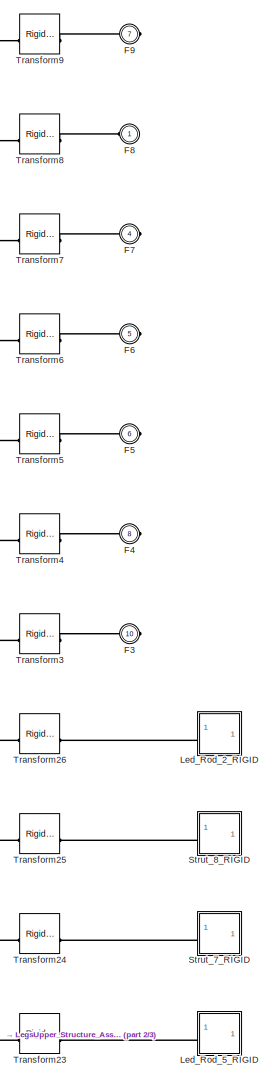
[diagram: Upper_Structure_Assembly_1_RIGID - part 1/3, top right region]
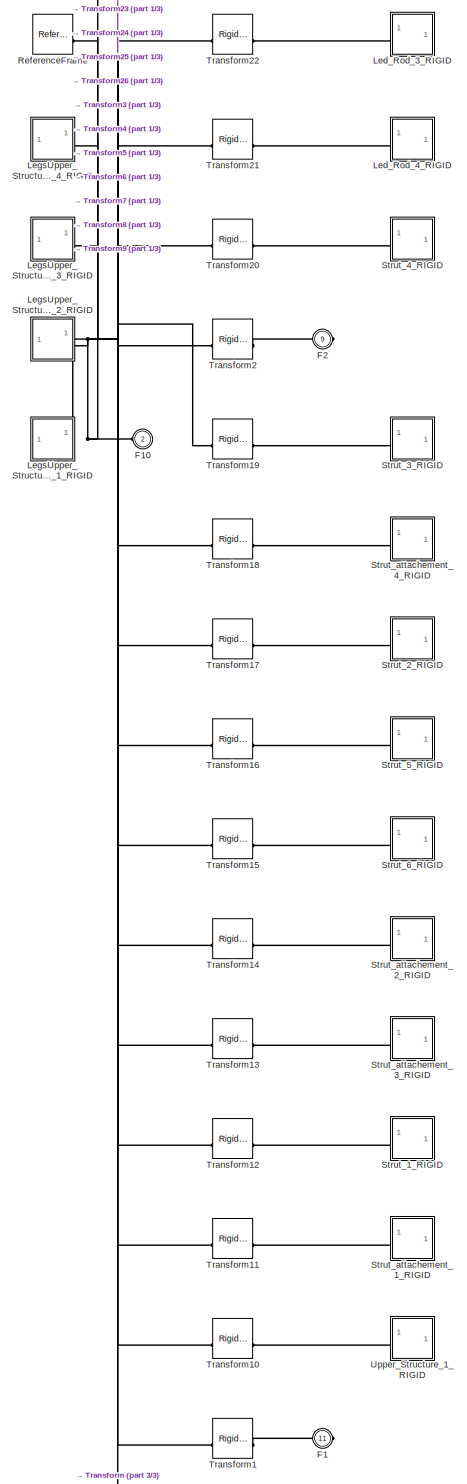
[diagram: Upper_Structure_Assembly_1_RIGID - part 2/3, full width, bottom band]
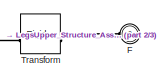
[diagram: Upper_Structure_Assembly_1_RIGID - part 3/3, bottom center region]
BLOCK [SubSystem] Upper_Structure_Assembly_1_RIGID
BLOCK [PMIOPort] Upper_Structure_Assembly_1_RIGID/F
  Port = 3
  Side = Left
BLOCK [PMIOPort] Upper_Structure_Assembly_1_RIGID/F1
  Port = 11
  Side = Right
BLOCK [PMIOPort] Upper_Structure_Assembly_1_RIGID/F10
  Port = 2
  Side = Left
BLOCK [PMIOPort] Upper_Structure_Assembly_1_RIGID/F2
  Port = 9
  Side = Right
BLOCK [PMIOPort] Upper_Structure_Assembly_1_RIGID/F3
  Port = 10
  Side = Right
BLOCK [PMIOPort] Upper_Structure_Assembly_1_RIGID/F4
  Port = 8
  Side = Right
BLOCK [PMIOPort] Upper_Structure_Assembly_1_RIGID/F5
  Port = 6
  Side = Right
BLOCK [PMIOPort] Upper_Structure_Assembly_1_RIGID/F6
  Port = 5
  Side = Right
BLOCK [PMIOPort] Upper_Structure_Assembly_1_RIGID/F7
  Port = 4
  Side = Right
BLOCK [PMIOPort] Upper_Structure_Assembly_1_RIGID/F8
  Side = Left
BLOCK [PMIOPort] Upper_Structure_Assembly_1_RIGID/F9
  Port = 7
  Side = Right
BLOCK [SubSystem] Upper_Structure_Assembly_1_RIGID/Led_Rod_2_RIGID
BLOCK [PMIOPort] Upper_Structure_Assembly_1_RIGID/Led_Rod_2_RIGID/F
  Side = Left
BLOCK [Reference] Upper_Structure_Assembly_1_RIGID/Led_Rod_2_RIGID/ReferenceFrame  REF=sm_lib/Frames and
Transforms/Reference
Frame
  SourceBlock = sm_lib/Frames and\nTransforms/Reference\nFrame
  SourceType = Reference\nFrame
BLOCK [Reference] Upper_Structure_Assembly_1_RIGID/Led_Rod_2_RIGID/Solid  REF=sm_lib/Body Elements/File Solid
  SourceBlock = sm_lib/Body Elements/File Solid
  SourceType = File Solid
BLOCK [SubSystem] Upper_Structure_Assembly_1_RIGID/Led_Rod_3_RIGID
BLOCK [PMIOPort] Upper_Structure_Assembly_1_RIGID/Led_Rod_3_RIGID/F
  Side = Left
BLOCK [Reference] Upper_Structure_Assembly_1_RIGID/Led_Rod_3_RIGID/ReferenceFrame  REF=sm_lib/Frames and
Transforms/Reference
Frame
  SourceBlock = sm_lib/Frames and\nTransforms/Reference\nFrame
  SourceType = Reference\nFrame
BLOCK [Reference] Upper_Structure_Assembly_1_RIGID/Led_Rod_3_RIGID/Solid  REF=sm_lib/Body Elements/File Solid
  SourceBlock = sm_lib/Body Elements/File Solid
  SourceType = File Solid
BLOCK [SubSystem] Upper_Structure_Assembly_1_RIGID/Led_Rod_4_RIGID
BLOCK [PMIOPort] Upper_Structure_Assembly_1_RIGID/Led_Rod_4_RIGID/F
  Side = Left
BLOCK [Reference] Upper_Structure_Assembly_1_RIGID/Led_Rod_4_RIGID/ReferenceFrame  REF=sm_lib/Frames and
Transforms/Reference
Frame
  SourceBlock = sm_lib/Frames and\nTransforms/Reference\nFrame
  SourceType = Reference\nFrame
BLOCK [Reference] Upper_Structure_Assembly_1_RIGID/Led_Rod_4_RIGID/Solid  REF=sm_lib/Body Elements/File Solid
  SourceBlock = sm_lib/Body Elements/File Solid
  SourceType = File Solid
BLOCK [SubSystem] Upper_Structure_Assembly_1_RIGID/Led_Rod_5_RIGID
BLOCK [PMIOPort] Upper_Structure_Assembly_1_RIGID/Led_Rod_5_RIGID/F
  Side = Left
BLOCK [Reference] Upper_Structure_Assembly_1_RIGID/Led_Rod_5_RIGID/ReferenceFrame  REF=sm_lib/Frames and
Transforms/Reference
Frame
  SourceBlock = sm_lib/Frames and\nTransforms/Reference\nFrame
  SourceType = Reference\nFrame
BLOCK [Reference] Upper_Structure_Assembly_1_RIGID/Led_Rod_5_RIGID/Solid  REF=sm_lib/Body Elements/File Solid
  SourceBlock = sm_lib/Body Elements/File Solid
  SourceType = File Solid
BLOCK [SubSystem] Upper_Structure_Assembly_1_RIGID/LegsUpper_Structure_Assembly_1_RIGID
BLOCK [PMIOPort] Upper_Structure_Assembly_1_RIGID/LegsUpper_Structure_Assembly_1_RIGID/F
  Side = Right
BLOCK [SubSystem] Upper_Structure_Assembly_1_RIGID/LegsUpper_Structure_Assembly_1_RIGID/Led_Rod_1_RIGID
BLOCK [PMIOPort] Upper_Structure_Assembly_1_RIGID/LegsUpper_Structure_Assembly_1_RIGID/Led_Rod_1_RIGID/F
  Side = Left
BLOCK [Reference] Upper_Structure_Assembly_1_RIGID/LegsUpper_Structure_Assembly_1_RIGID/Led_Rod_1_RIGID/ReferenceFrame  REF=sm_lib/Frames and
Transforms/Reference
Frame
  SourceBlock = sm_lib/Frames and\nTransforms/Reference\nFrame
  SourceType = Reference\nFrame
BLOCK [Reference] Upper_Structure_Assembly_1_RIGID/LegsUpper_Structure_Assembly_1_RIGID/Led_Rod_1_RIGID/Solid  REF=sm_lib/Body Elements/File Solid
  SourceBlock = sm_lib/Body Elements/File Solid
  SourceType = File Solid
BLOCK [Reference] Upper_Structure_Assembly_1_RIGID/LegsUpper_Structure_Assembly_1_RIGID/ReferenceFrame  REF=sm_lib/Frames and
Transforms/Reference
Frame
  SourceBlock = sm_lib/Frames and\nTransforms/Reference\nFrame
  SourceType = Reference\nFrame
BLOCK [Reference] Upper_Structure_Assembly_1_RIGID/LegsUpper_Structure_Assembly_1_RIGID/Transform  REF=sm_lib/Frames and
Transforms/Rigid
Transform
  SourceBlock = sm_lib/Frames and\nTransforms/Rigid\nTransform
  SourceType = Rigid\nTransform
BLOCK [Reference] Upper_Structure_Assembly_1_RIGID/LegsUpper_Structure_Assembly_1_RIGID/Transform1  REF=sm_lib/Frames and
Transforms/Rigid
Transform
  SourceBlock = sm_lib/Frames and\nTransforms/Rigid\nTransform
  SourceType = Rigid\nTransform
BLOCK [Reference] Upper_Structure_Assembly_1_RIGID/LegsUpper_Structure_Assembly_1_RIGID/Transform2  REF=sm_lib/Frames and
Transforms/Rigid
Transform
  SourceBlock = sm_lib/Frames and\nTransforms/Rigid\nTransform
  SourceType = Rigid\nTransform
BLOCK [SubSystem] Upper_Structure_Assembly_1_RIGID/LegsUpper_Structure_Assembly_1_RIGID/boots_1_RIGID
BLOCK [PMIOPort] Upper_Structure_Assembly_1_RIGID/LegsUpper_Structure_Assembly_1_RIGID/boots_1_RIGID/F
  Side = Left
BLOCK [Reference] Upper_Structure_Assembly_1_RIGID/LegsUpper_Structure_Assembly_1_RIGID/boots_1_RIGID/ReferenceFrame  REF=sm_lib/Frames and
Transforms/Reference
Frame
  SourceBlock = sm_lib/Frames and\nTransforms/Reference\nFrame
  SourceType = Reference\nFrame
BLOCK [Reference] Upper_Structure_Assembly_1_RIGID/LegsUpper_Structure_Assembly_1_RIGID/boots_1_RIGID/Solid  REF=sm_lib/Body Elements/File Solid
  SourceBlock = sm_lib/Body Elements/File Solid
  SourceType = File Solid
BLOCK [SubSystem] Upper_Structure_Assembly_1_RIGID/LegsUpper_Structure_Assembly_2_RIGID
BLOCK [PMIOPort] Upper_Structure_Assembly_1_RIGID/LegsUpper_Structure_Assembly_2_RIGID/F
  Side = Right
BLOCK [SubSystem] Upper_Structure_Assembly_1_RIGID/LegsUpper_Structure_Assembly_2_RIGID/Led_Rod_1_RIGID
BLOCK [PMIOPort] Upper_Structure_Assembly_1_RIGID/LegsUpper_Structure_Assembly_2_RIGID/Led_Rod_1_RIGID/F
  Side = Left
BLOCK [Reference] Upper_Structure_Assembly_1_RIGID/LegsUpper_Structure_Assembly_2_RIGID/Led_Rod_1_RIGID/ReferenceFrame  REF=sm_lib/Frames and
Transforms/Reference
Frame
  SourceBlock = sm_lib/Frames and\nTransforms/Reference\nFrame
  SourceType = Reference\nFrame
BLOCK [Reference] Upper_Structure_Assembly_1_RIGID/LegsUpper_Structure_Assembly_2_RIGID/Led_Rod_1_RIGID/Solid  REF=sm_lib/Body Elements/File Solid
  SourceBlock = sm_lib/Body Elements/File Solid
  SourceType = File Solid
BLOCK [Reference] Upper_Structure_Assembly_1_RIGID/LegsUpper_Structure_Assembly_2_RIGID/ReferenceFrame  REF=sm_lib/Frames and
Transforms/Reference
Frame
  SourceBlock = sm_lib/Frames and\nTransforms/Reference\nFrame
  SourceType = Reference\nFrame
BLOCK [Reference] Upper_Structure_Assembly_1_RIGID/LegsUpper_Structure_Assembly_2_RIGID/Transform  REF=sm_lib/Frames and
Transforms/Rigid
Transform
  SourceBlock = sm_lib/Frames and\nTransforms/Rigid\nTransform
  SourceType = Rigid\nTransform
BLOCK [Reference] Upper_Structure_Assembly_1_RIGID/LegsUpper_Structure_Assembly_2_RIGID/Transform1  REF=sm_lib/Frames and
Transforms/Rigid
Transform
  SourceBlock = sm_lib/Frames and\nTransforms/Rigid\nTransform
  SourceType = Rigid\nTransform
BLOCK [Reference] Upper_Structure_Assembly_1_RIGID/LegsUpper_Structure_Assembly_2_RIGID/Transform2  REF=sm_lib/Frames and
Transforms/Rigid
Transform
  SourceBlock = sm_lib/Frames and\nTransforms/Rigid\nTransform
  SourceType = Rigid\nTransform
BLOCK [SubSystem] Upper_Structure_Assembly_1_RIGID/LegsUpper_Structure_Assembly_2_RIGID/boots_1_RIGID
BLOCK [PMIOPort] Upper_Structure_Assembly_1_RIGID/LegsUpper_Structure_Assembly_2_RIGID/boots_1_RIGID/F
  Side = Left
BLOCK [Reference] Upper_Structure_Assembly_1_RIGID/LegsUpper_Structure_Assembly_2_RIGID/boots_1_RIGID/ReferenceFrame  REF=sm_lib/Frames and
Transforms/Reference
Frame
  SourceBlock = sm_lib/Frames and\nTransforms/Reference\nFrame
  SourceType = Reference\nFrame
BLOCK [Reference] Upper_Structure_Assembly_1_RIGID/LegsUpper_Structure_Assembly_2_RIGID/boots_1_RIGID/Solid  REF=sm_lib/Body Elements/File Solid
  SourceBlock = sm_lib/Body Elements/File Solid
  SourceType = File Solid
BLOCK [SubSystem] Upper_Structure_Assembly_1_RIGID/LegsUpper_Structure_Assembly_3_RIGID
BLOCK [PMIOPort] Upper_Structure_Assembly_1_RIGID/LegsUpper_Structure_Assembly_3_RIGID/F
  Side = Right
BLOCK [SubSystem] Upper_Structure_Assembly_1_RIGID/LegsUpper_Structure_Assembly_3_RIGID/Led_Rod_1_RIGID
BLOCK [PMIOPort] Upper_Structure_Assembly_1_RIGID/LegsUpper_Structure_Assembly_3_RIGID/Led_Rod_1_RIGID/F
  Side = Left
BLOCK [Reference] Upper_Structure_Assembly_1_RIGID/LegsUpper_Structure_Assembly_3_RIGID/Led_Rod_1_RIGID/ReferenceFrame  REF=sm_lib/Frames and
Transforms/Reference
Frame
  SourceBlock = sm_lib/Frames and\nTransforms/Reference\nFrame
  SourceType = Reference\nFrame
BLOCK [Reference] Upper_Structure_Assembly_1_RIGID/LegsUpper_Structure_Assembly_3_RIGID/Led_Rod_1_RIGID/Solid  REF=sm_lib/Body Elements/File Solid
  SourceBlock = sm_lib/Body Elements/File Solid
  SourceType = File Solid
BLOCK [Reference] Upper_Structure_Assembly_1_RIGID/LegsUpper_Structure_Assembly_3_RIGID/ReferenceFrame  REF=sm_lib/Frames and
Transforms/Reference
Frame
  SourceBlock = sm_lib/Frames and\nTransforms/Reference\nFrame
  SourceType = Reference\nFrame
BLOCK [Reference] Upper_Structure_Assembly_1_RIGID/LegsUpper_Structure_Assembly_3_RIGID/Transform  REF=sm_lib/Frames and
Transforms/Rigid
Transform
  SourceBlock = sm_lib/Frames and\nTransforms/Rigid\nTransform
  SourceType = Rigid\nTransform
BLOCK [Reference] Upper_Structure_Assembly_1_RIGID/LegsUpper_Structure_Assembly_3_RIGID/Transform1  REF=sm_lib/Frames and
Transforms/Rigid
Transform
  SourceBlock = sm_lib/Frames and\nTransforms/Rigid\nTransform
  SourceType = Rigid\nTransform
BLOCK [Reference] Upper_Structure_Assembly_1_RIGID/LegsUpper_Structure_Assembly_3_RIGID/Transform2  REF=sm_lib/Frames and
Transforms/Rigid
Transform
  SourceBlock = sm_lib/Frames and\nTransforms/Rigid\nTransform
  SourceType = Rigid\nTransform
BLOCK [SubSystem] Upper_Structure_Assembly_1_RIGID/LegsUpper_Structure_Assembly_3_RIGID/boots_1_RIGID
BLOCK [PMIOPort] Upper_Structure_Assembly_1_RIGID/LegsUpper_Structure_Assembly_3_RIGID/boots_1_RIGID/F
  Side = Left
BLOCK [Reference] Upper_Structure_Assembly_1_RIGID/LegsUpper_Structure_Assembly_3_RIGID/boots_1_RIGID/ReferenceFrame  REF=sm_lib/Frames and
Transforms/Reference
Frame
  SourceBlock = sm_lib/Frames and\nTransforms/Reference\nFrame
  SourceType = Reference\nFrame
BLOCK [Reference] Upper_Structure_Assembly_1_RIGID/LegsUpper_Structure_Assembly_3_RIGID/boots_1_RIGID/Solid  REF=sm_lib/Body Elements/File Solid
  SourceBlock = sm_lib/Body Elements/File Solid
  SourceType = File Solid
BLOCK [SubSystem] Upper_Structure_Assembly_1_RIGID/LegsUpper_Structure_Assembly_4_RIGID
BLOCK [PMIOPort] Upper_Structure_Assembly_1_RIGID/LegsUpper_Structure_Assembly_4_RIGID/F
  Side = Right
BLOCK [SubSystem] Upper_Structure_Assembly_1_RIGID/LegsUpper_Structure_Assembly_4_RIGID/Led_Rod_1_RIGID
BLOCK [PMIOPort] Upper_Structure_Assembly_1_RIGID/LegsUpper_Structure_Assembly_4_RIGID/Led_Rod_1_RIGID/F
  Side = Left
BLOCK [Reference] Upper_Structure_Assembly_1_RIGID/LegsUpper_Structure_Assembly_4_RIGID/Led_Rod_1_RIGID/ReferenceFrame  REF=sm_lib/Frames and
Transforms/Reference
Frame
  SourceBlock = sm_lib/Frames and\nTransforms/Reference\nFrame
  SourceType = Reference\nFrame
BLOCK [Reference] Upper_Structure_Assembly_1_RIGID/LegsUpper_Structure_Assembly_4_RIGID/Led_Rod_1_RIGID/Solid  REF=sm_lib/Body Elements/File Solid
  SourceBlock = sm_lib/Body Elements/File Solid
  SourceType = File Solid
BLOCK [Reference] Upper_Structure_Assembly_1_RIGID/LegsUpper_Structure_Assembly_4_RIGID/ReferenceFrame  REF=sm_lib/Frames and
Transforms/Reference
Frame
  SourceBlock = sm_lib/Frames and\nTransforms/Reference\nFrame
  SourceType = Reference\nFrame
BLOCK [Reference] Upper_Structure_Assembly_1_RIGID/LegsUpper_Structure_Assembly_4_RIGID/Transform  REF=sm_lib/Frames and
Transforms/Rigid
Transform
  SourceBlock = sm_lib/Frames and\nTransforms/Rigid\nTransform
  SourceType = Rigid\nTransform
BLOCK [Reference] Upper_Structure_Assembly_1_RIGID/LegsUpper_Structure_Assembly_4_RIGID/Transform1  REF=sm_lib/Frames and
Transforms/Rigid
Transform
  SourceBlock = sm_lib/Frames and\nTransforms/Rigid\nTransform
  SourceType = Rigid\nTransform
BLOCK [Reference] Upper_Structure_Assembly_1_RIGID/LegsUpper_Structure_Assembly_4_RIGID/Transform2  REF=sm_lib/Frames and
Transforms/Rigid
Transform
  SourceBlock = sm_lib/Frames and\nTransforms/Rigid\nTransform
  SourceType = Rigid\nTransform
BLOCK [SubSystem] Upper_Structure_Assembly_1_RIGID/LegsUpper_Structure_Assembly_4_RIGID/boots_1_RIGID
BLOCK [PMIOPort] Upper_Structure_Assembly_1_RIGID/LegsUpper_Structure_Assembly_4_RIGID/boots_1_RIGID/F
  Side = Left
BLOCK [Reference] Upper_Structure_Assembly_1_RIGID/LegsUpper_Structure_Assembly_4_RIGID/boots_1_RIGID/ReferenceFrame  REF=sm_lib/Frames and
Transforms/Reference
Frame
  SourceBlock = sm_lib/Frames and\nTransforms/Reference\nFrame
  SourceType = Reference\nFrame
BLOCK [Reference] Upper_Structure_Assembly_1_RIGID/LegsUpper_Structure_Assembly_4_RIGID/boots_1_RIGID/Solid  REF=sm_lib/Body Elements/File Solid
  SourceBlock = sm_lib/Body Elements/File Solid
  SourceType = File Solid
BLOCK [Reference] Upper_Structure_Assembly_1_RIGID/ReferenceFrame  REF=sm_lib/Frames and
Transforms/Reference
Frame
  SourceBlock = sm_lib/Frames and\nTransforms/Reference\nFrame
  SourceType = Reference\nFrame
BLOCK [SubSystem] Upper_Structure_Assembly_1_RIGID/Strut_1_RIGID
BLOCK [PMIOPort] Upper_Structure_Assembly_1_RIGID/Strut_1_RIGID/F
  Side = Left
BLOCK [Reference] Upper_Structure_Assembly_1_RIGID/Strut_1_RIGID/ReferenceFrame  REF=sm_lib/Frames and
Transforms/Reference
Frame
  SourceBlock = sm_lib/Frames and\nTransforms/Reference\nFrame
  SourceType = Reference\nFrame
BLOCK [Reference] Upper_Structure_Assembly_1_RIGID/Strut_1_RIGID/Solid  REF=sm_lib/Body Elements/File Solid
  SourceBlock = sm_lib/Body Elements/File Solid
  SourceType = File Solid
BLOCK [SubSystem] Upper_Structure_Assembly_1_RIGID/Strut_2_RIGID
BLOCK [PMIOPort] Upper_Structure_Assembly_1_RIGID/Strut_2_RIGID/F
  Side = Left
BLOCK [Reference] Upper_Structure_Assembly_1_RIGID/Strut_2_RIGID/ReferenceFrame  REF=sm_lib/Frames and
Transforms/Reference
Frame
  SourceBlock = sm_lib/Frames and\nTransforms/Reference\nFrame
  SourceType = Reference\nFrame
BLOCK [Reference] Upper_Structure_Assembly_1_RIGID/Strut_2_RIGID/Solid  REF=sm_lib/Body Elements/File Solid
  SourceBlock = sm_lib/Body Elements/File Solid
  SourceType = File Solid
BLOCK [SubSystem] Upper_Structure_Assembly_1_RIGID/Strut_3_RIGID
BLOCK [PMIOPort] Upper_Structure_Assembly_1_RIGID/Strut_3_RIGID/F
  Side = Left
BLOCK [Reference] Upper_Structure_Assembly_1_RIGID/Strut_3_RIGID/ReferenceFrame  REF=sm_lib/Frames and
Transforms/Reference
Frame
  SourceBlock = sm_lib/Frames and\nTransforms/Reference\nFrame
  SourceType = Reference\nFrame
BLOCK [Reference] Upper_Structure_Assembly_1_RIGID/Strut_3_RIGID/Solid  REF=sm_lib/Body Elements/File Solid
  SourceBlock = sm_lib/Body Elements/File Solid
  SourceType = File Solid
BLOCK [SubSystem] Upper_Structure_Assembly_1_RIGID/Strut_4_RIGID
BLOCK [PMIOPort] Upper_Structure_Assembly_1_RIGID/Strut_4_RIGID/F
  Side = Left
BLOCK [Reference] Upper_Structure_Assembly_1_RIGID/Strut_4_RIGID/ReferenceFrame  REF=sm_lib/Frames and
Transforms/Reference
Frame
  SourceBlock = sm_lib/Frames and\nTransforms/Reference\nFrame
  SourceType = Reference\nFrame
BLOCK [Reference] Upper_Structure_Assembly_1_RIGID/Strut_4_RIGID/Solid  REF=sm_lib/Body Elements/File Solid
  SourceBlock = sm_lib/Body Elements/File Solid
  SourceType = File Solid
BLOCK [SubSystem] Upper_Structure_Assembly_1_RIGID/Strut_5_RIGID
BLOCK [PMIOPort] Upper_Structure_Assembly_1_RIGID/Strut_5_RIGID/F
  Side = Left
BLOCK [Reference] Upper_Structure_Assembly_1_RIGID/Strut_5_RIGID/ReferenceFrame  REF=sm_lib/Frames and
Transforms/Reference
Frame
  SourceBlock = sm_lib/Frames and\nTransforms/Reference\nFrame
  SourceType = Reference\nFrame
BLOCK [Reference] Upper_Structure_Assembly_1_RIGID/Strut_5_RIGID/Solid  REF=sm_lib/Body Elements/File Solid
  SourceBlock = sm_lib/Body Elements/File Solid
  SourceType = File Solid
BLOCK [SubSystem] Upper_Structure_Assembly_1_RIGID/Strut_6_RIGID
BLOCK [PMIOPort] Upper_Structure_Assembly_1_RIGID/Strut_6_RIGID/F
  Side = Left
BLOCK [Reference] Upper_Structure_Assembly_1_RIGID/Strut_6_RIGID/ReferenceFrame  REF=sm_lib/Frames and
Transforms/Reference
Frame
  SourceBlock = sm_lib/Frames and\nTransforms/Reference\nFrame
  SourceType = Reference\nFrame
BLOCK [Reference] Upper_Structure_Assembly_1_RIGID/Strut_6_RIGID/Solid  REF=sm_lib/Body Elements/File Solid
  SourceBlock = sm_lib/Body Elements/File Solid
  SourceType = File Solid
BLOCK [SubSystem] Upper_Structure_Assembly_1_RIGID/Strut_7_RIGID
BLOCK [PMIOPort] Upper_Structure_Assembly_1_RIGID/Strut_7_RIGID/F
  Side = Left
BLOCK [Reference] Upper_Structure_Assembly_1_RIGID/Strut_7_RIGID/ReferenceFrame  REF=sm_lib/Frames and
Transforms/Reference
Frame
  SourceBlock = sm_lib/Frames and\nTransforms/Reference\nFrame
  SourceType = Reference\nFrame
BLOCK [Reference] Upper_Structure_Assembly_1_RIGID/Strut_7_RIGID/Solid  REF=sm_lib/Body Elements/File Solid
  SourceBlock = sm_lib/Body Elements/File Solid
  SourceType = File Solid
BLOCK [SubSystem] Upper_Structure_Assembly_1_RIGID/Strut_8_RIGID
BLOCK [PMIOPort] Upper_Structure_Assembly_1_RIGID/Strut_8_RIGID/F
  Side = Left
BLOCK [Reference] Upper_Structure_Assembly_1_RIGID/Strut_8_RIGID/ReferenceFrame  REF=sm_lib/Frames and
Transforms/Reference
Frame
  SourceBlock = sm_lib/Frames and\nTransforms/Reference\nFrame
  SourceType = Reference\nFrame
BLOCK [Reference] Upper_Structure_Assembly_1_RIGID/Strut_8_RIGID/Solid  REF=sm_lib/Body Elements/File Solid
  SourceBlock = sm_lib/Body Elements/File Solid
  SourceType = File Solid
BLOCK [SubSystem] Upper_Structure_Assembly_1_RIGID/Strut_attachement_1_RIGID
BLOCK [PMIOPort] Upper_Structure_Assembly_1_RIGID/Strut_attachement_1_RIGID/F
  Side = Left
BLOCK [Reference] Upper_Structure_Assembly_1_RIGID/Strut_attachement_1_RIGID/ReferenceFrame  REF=sm_lib/Frames and
Transforms/Reference
Frame
  SourceBlock = sm_lib/Frames and\nTransforms/Reference\nFrame
  SourceType = Reference\nFrame
BLOCK [Reference] Upper_Structure_Assembly_1_RIGID/Strut_attachement_1_RIGID/Solid  REF=sm_lib/Body Elements/File Solid
  SourceBlock = sm_lib/Body Elements/File Solid
  SourceType = File Solid
BLOCK [SubSystem] Upper_Structure_Assembly_1_RIGID/Strut_attachement_2_RIGID
BLOCK [PMIOPort] Upper_Structure_Assembly_1_RIGID/Strut_attachement_2_RIGID/F
  Side = Left
BLOCK [Reference] Upper_Structure_Assembly_1_RIGID/Strut_attachement_2_RIGID/ReferenceFrame  REF=sm_lib/Frames and
Transforms/Reference
Frame
  SourceBlock = sm_lib/Frames and\nTransforms/Reference\nFrame
  SourceType = Reference\nFrame
BLOCK [Reference] Upper_Structure_Assembly_1_RIGID/Strut_attachement_2_RIGID/Solid  REF=sm_lib/Body Elements/File Solid
  SourceBlock = sm_lib/Body Elements/File Solid
  SourceType = File Solid
BLOCK [SubSystem] Upper_Structure_Assembly_1_RIGID/Strut_attachement_3_RIGID
BLOCK [PMIOPort] Upper_Structure_Assembly_1_RIGID/Strut_attachement_3_RIGID/F
  Side = Left
BLOCK [Reference] Upper_Structure_Assembly_1_RIGID/Strut_attachement_3_RIGID/ReferenceFrame  REF=sm_lib/Frames and
Transforms/Reference
Frame
  SourceBlock = sm_lib/Frames and\nTransforms/Reference\nFrame
  SourceType = Reference\nFrame
BLOCK [Reference] Upper_Structure_Assembly_1_RIGID/Strut_attachement_3_RIGID/Solid  REF=sm_lib/Body Elements/File Solid
  SourceBlock = sm_lib/Body Elements/File Solid
  SourceType = File Solid
BLOCK [SubSystem] Upper_Structure_Assembly_1_RIGID/Strut_attachement_4_RIGID
BLOCK [PMIOPort] Upper_Structure_Assembly_1_RIGID/Strut_attachement_4_RIGID/F
  Side = Left
BLOCK [Reference] Upper_Structure_Assembly_1_RIGID/Strut_attachement_4_RIGID/ReferenceFrame  REF=sm_lib/Frames and
Transforms/Reference
Frame
  SourceBlock = sm_lib/Frames and\nTransforms/Reference\nFrame
  SourceType = Reference\nFrame
BLOCK [Reference] Upper_Structure_Assembly_1_RIGID/Strut_attachement_4_RIGID/Solid  REF=sm_lib/Body Elements/File Solid
  SourceBlock = sm_lib/Body Elements/File Solid
  SourceType = File Solid
BLOCK [Reference] Upper_Structure_Assembly_1_RIGID/Transform  REF=sm_lib/Frames and
Transforms/Rigid
Transform
  SourceBlock = sm_lib/Frames and\nTransforms/Rigid\nTransform
  SourceType = Rigid\nTransform
BLOCK [Reference] Upper_Structure_Assembly_1_RIGID/Transform1  REF=sm_lib/Frames and
Transforms/Rigid
Transform
  SourceBlock = sm_lib/Frames and\nTransforms/Rigid\nTransform
  SourceType = Rigid\nTransform
BLOCK [Reference] Upper_Structure_Assembly_1_RIGID/Transform10  REF=sm_lib/Frames and
Transforms/Rigid
Transform
  SourceBlock = sm_lib/Frames and\nTransforms/Rigid\nTransform
  SourceType = Rigid\nTransform
BLOCK [Reference] Upper_Structure_Assembly_1_RIGID/Transform11  REF=sm_lib/Frames and
Transforms/Rigid
Transform
  SourceBlock = sm_lib/Frames and\nTransforms/Rigid\nTransform
  SourceType = Rigid\nTransform
BLOCK [Reference] Upper_Structure_Assembly_1_RIGID/Transform12  REF=sm_lib/Frames and
Transforms/Rigid
Transform
  SourceBlock = sm_lib/Frames and\nTransforms/Rigid\nTransform
  SourceType = Rigid\nTransform
BLOCK [Reference] Upper_Structure_Assembly_1_RIGID/Transform13  REF=sm_lib/Frames and
Transforms/Rigid
Transform
  SourceBlock = sm_lib/Frames and\nTransforms/Rigid\nTransform
  SourceType = Rigid\nTransform
BLOCK [Reference] Upper_Structure_Assembly_1_RIGID/Transform14  REF=sm_lib/Frames and
Transforms/Rigid
Transform
  SourceBlock = sm_lib/Frames and\nTransforms/Rigid\nTransform
  SourceType = Rigid\nTransform
BLOCK [Reference] Upper_Structure_Assembly_1_RIGID/Transform15  REF=sm_lib/Frames and
Transforms/Rigid
Transform
  SourceBlock = sm_lib/Frames and\nTransforms/Rigid\nTransform
  SourceType = Rigid\nTransform
BLOCK [Reference] Upper_Structure_Assembly_1_RIGID/Transform16  REF=sm_lib/Frames and
Transforms/Rigid
Transform
  SourceBlock = sm_lib/Frames and\nTransforms/Rigid\nTransform
  SourceType = Rigid\nTransform
BLOCK [Reference] Upper_Structure_Assembly_1_RIGID/Transform17  REF=sm_lib/Frames and
Transforms/Rigid
Transform
  SourceBlock = sm_lib/Frames and\nTransforms/Rigid\nTransform
  SourceType = Rigid\nTransform
BLOCK [Reference] Upper_Structure_Assembly_1_RIGID/Transform18  REF=sm_lib/Frames and
Transforms/Rigid
Transform
  SourceBlock = sm_lib/Frames and\nTransforms/Rigid\nTransform
  SourceType = Rigid\nTransform
BLOCK [Reference] Upper_Structure_Assembly_1_RIGID/Transform19  REF=sm_lib/Frames and
Transforms/Rigid
Transform
  SourceBlock = sm_lib/Frames and\nTransforms/Rigid\nTransform
  SourceType = Rigid\nTransform
BLOCK [Reference] Upper_Structure_Assembly_1_RIGID/Transform2  REF=sm_lib/Frames and
Transforms/Rigid
Transform
  SourceBlock = sm_lib/Frames and\nTransforms/Rigid\nTransform
  SourceType = Rigid\nTransform
BLOCK [Reference] Upper_Structure_Assembly_1_RIGID/Transform20  REF=sm_lib/Frames and
Transforms/Rigid
Transform
  SourceBlock = sm_lib/Frames and\nTransforms/Rigid\nTransform
  SourceType = Rigid\nTransform
BLOCK [Reference] Upper_Structure_Assembly_1_RIGID/Transform21  REF=sm_lib/Frames and
Transforms/Rigid
Transform
  SourceBlock = sm_lib/Frames and\nTransforms/Rigid\nTransform
  SourceType = Rigid\nTransform
BLOCK [Reference] Upper_Structure_Assembly_1_RIGID/Transform22  REF=sm_lib/Frames and
Transforms/Rigid
Transform
  SourceBlock = sm_lib/Frames and\nTransforms/Rigid\nTransform
  SourceType = Rigid\nTransform
BLOCK [Reference] Upper_Structure_Assembly_1_RIGID/Transform23  REF=sm_lib/Frames and
Transforms/Rigid
Transform
  SourceBlock = sm_lib/Frames and\nTransforms/Rigid\nTransform
  SourceType = Rigid\nTransform
BLOCK [Reference] Upper_Structure_Assembly_1_RIGID/Transform24  REF=sm_lib/Frames and
Transforms/Rigid
Transform
  SourceBlock = sm_lib/Frames and\nTransforms/Rigid\nTransform
  SourceType = Rigid\nTransform
BLOCK [Reference] Upper_Structure_Assembly_1_RIGID/Transform25  REF=sm_lib/Frames and
Transforms/Rigid
Transform
  SourceBlock = sm_lib/Frames and\nTransforms/Rigid\nTransform
  SourceType = Rigid\nTransform
BLOCK [Reference] Upper_Structure_Assembly_1_RIGID/Transform26  REF=sm_lib/Frames and
Transforms/Rigid
Transform
  SourceBlock = sm_lib/Frames and\nTransforms/Rigid\nTransform
  SourceType = Rigid\nTransform
BLOCK [Reference] Upper_Structure_Assembly_1_RIGID/Transform3  REF=sm_lib/Frames and
Transforms/Rigid
Transform
  SourceBlock = sm_lib/Frames and\nTransforms/Rigid\nTransform
  SourceType = Rigid\nTransform
BLOCK [Reference] Upper_Structure_Assembly_1_RIGID/Transform4  REF=sm_lib/Frames and
Transforms/Rigid
Transform
  SourceBlock = sm_lib/Frames and\nTransforms/Rigid\nTransform
  SourceType = Rigid\nTransform
BLOCK [Reference] Upper_Structure_Assembly_1_RIGID/Transform5  REF=sm_lib/Frames and
Transforms/Rigid
Transform
  SourceBlock = sm_lib/Frames and\nTransforms/Rigid\nTransform
  SourceType = Rigid\nTransform
BLOCK [Reference] Upper_Structure_Assembly_1_RIGID/Transform6  REF=sm_lib/Frames and
Transforms/Rigid
Transform
  SourceBlock = sm_lib/Frames and\nTransforms/Rigid\nTransform
  SourceType = Rigid\nTransform
BLOCK [Reference] Upper_Structure_Assembly_1_RIGID/Transform7  REF=sm_lib/Frames and
Transforms/Rigid
Transform
  SourceBlock = sm_lib/Frames and\nTransforms/Rigid\nTransform
  SourceType = Rigid\nTransform
BLOCK [Reference] Upper_Structure_Assembly_1_RIGID/Transform8  REF=sm_lib/Frames and
Transforms/Rigid
Transform
  SourceBlock = sm_lib/Frames and\nTransforms/Rigid\nTransform
  SourceType = Rigid\nTransform
BLOCK [Reference] Upper_Structure_Assembly_1_RIGID/Transform9  REF=sm_lib/Frames and
Transforms/Rigid
Transform
  SourceBlock = sm_lib/Frames and\nTransforms/Rigid\nTransform
  SourceType = Rigid\nTransform
BLOCK [SubSystem] Upper_Structure_Assembly_1_RIGID/Upper_Structure_1_RIGID
BLOCK [PMIOPort] Upper_Structure_Assembly_1_RIGID/Upper_Structure_1_RIGID/F
  Side = Left
BLOCK [Reference] Upper_Structure_Assembly_1_RIGID/Upper_Structure_1_RIGID/ReferenceFrame  REF=sm_lib/Frames and
Transforms/Reference
Frame
  SourceBlock = sm_lib/Frames and\nTransforms/Reference\nFrame
  SourceType = Reference\nFrame
BLOCK [Reference] Upper_Structure_Assembly_1_RIGID/Upper_Structure_1_RIGID/Solid  REF=sm_lib/Body Elements/File Solid
  SourceBlock = sm_lib/Body Elements/File Solid
  SourceType = File Solid
BLOCK [Reference] World  REF=sm_lib/Frames and
Transforms/World Frame
  SourceBlock = sm_lib/Frames and\nTransforms/World Frame
  SourceType = World Frame
BLOCK [SubSystem] battery_1_RIGID
BLOCK [PMIOPort] battery_1_RIGID/F
  Port = 2
  Side = Left
BLOCK [PMIOPort] battery_1_RIGID/F1
  Side = Left
BLOCK [Reference] battery_1_RIGID/ReferenceFrame  REF=sm_lib/Frames and
Transforms/Reference
Frame
  SourceBlock = sm_lib/Frames and\nTransforms/Reference\nFrame
  SourceType = Reference\nFrame
BLOCK [Reference] battery_1_RIGID/Solid  REF=sm_lib/Body Elements/File Solid
  SourceBlock = sm_lib/Body Elements/File Solid
  SourceType = File Solid
BLOCK [Reference] battery_1_RIGID/Transform  REF=sm_lib/Frames and
Transforms/Rigid
Transform
  SourceBlock = sm_lib/Frames and\nTransforms/Rigid\nTransform
  SourceType = Rigid\nTransform
BLOCK [Reference] battery_1_RIGID/Transform1  REF=sm_lib/Frames and
Transforms/Rigid
Transform
  SourceBlock = sm_lib/Frames and\nTransforms/Rigid\nTransform
  SourceType = Rigid\nTransform
PLINE Avionics_Bay_1_RIGID/F1:RConn1 -- Avionics_Bay_1_RIGID/Transform1:RConn1
PLINE Avionics_Bay_1_RIGID/F2:RConn1 -- Avionics_Bay_1_RIGID/Transform2:RConn1
PLINE Avionics_Bay_1_RIGID/F3:RConn1 -- Avionics_Bay_1_RIGID/Transform3:RConn1
PLINE Avionics_Bay_1_RIGID/F4:RConn1 -- Avionics_Bay_1_RIGID/Transform4:RConn1
PLINE Avionics_Bay_1_RIGID/F5:RConn1 -- Avionics_Bay_1_RIGID/Transform5:RConn1
PLINE Avionics_Bay_1_RIGID/F:RConn1 -- Avionics_Bay_1_RIGID/Transform:RConn1
PNET net1: Avionics_Bay_1_RIGID/ReferenceFrame:RConn1 -- Avionics_Bay_1_RIGID/Solid:RConn1 -- Avionics_Bay_1_RIGID/Transform1:LConn1 -- Avionics_Bay_1_RIGID/Transform2:LConn1 -- Avionics_Bay_1_RIGID/Transform3:LConn1 -- Avionics_Bay_1_RIGID/Transform4:LConn1 -- Avionics_Bay_1_RIGID/Transform5:LConn1 -- Avionics_Bay_1_RIGID/Transform:LConn1
PLINE Avionics_Bay_1_RIGID:LConn1 -- Prismatic1:RConn1
PLINE Avionics_Bay_1_RIGID:RConn1 -- Planar7:LConn1
PLINE Avionics_Bay_1_RIGID:RConn2 -- Planar6:LConn1
PLINE Avionics_Bay_1_RIGID:RConn3 -- Planar5:LConn1
PLINE Avionics_Bay_1_RIGID:RConn4 -- Planar3:LConn1
PLINE Avionics_Bay_1_RIGID:RConn5 -- Planar2:LConn1
PLINE Clamp_1_RIGID/F1:RConn1 -- Clamp_1_RIGID/Transform1:RConn1
PLINE Clamp_1_RIGID/F:RConn1 -- Clamp_1_RIGID/Transform:RConn1
PNET net2: Clamp_1_RIGID/ReferenceFrame:RConn1 -- Clamp_1_RIGID/Solid:RConn1 -- Clamp_1_RIGID/Transform1:LConn1 -- Clamp_1_RIGID/Transform:LConn1
PLINE Clamp_1_RIGID:LConn1 -- Planar:RConn1
PLINE Clamp_1_RIGID:LConn2 -- Cylindrical:RConn1
PLINE Clamp_2_RIGID/F1:RConn1 -- Clamp_2_RIGID/Transform1:RConn1
PLINE Clamp_2_RIGID/F:RConn1 -- Clamp_2_RIGID/Transform:RConn1
PNET net3: Clamp_2_RIGID/ReferenceFrame:RConn1 -- Clamp_2_RIGID/Solid:RConn1 -- Clamp_2_RIGID/Transform1:LConn1 -- Clamp_2_RIGID/Transform:LConn1
PLINE Clamp_2_RIGID:LConn1 -- Planar1:RConn1
PLINE Clamp_2_RIGID:LConn2 -- Cylindrical1:RConn1
PLINE Clamp_3_RIGID/F1:RConn1 -- Clamp_3_RIGID/Transform1:RConn1
PLINE Clamp_3_RIGID/F:RConn1 -- Clamp_3_RIGID/Transform:RConn1
PNET net4: Clamp_3_RIGID/ReferenceFrame:RConn1 -- Clamp_3_RIGID/Solid:RConn1 -- Clamp_3_RIGID/Transform1:LConn1 -- Clamp_3_RIGID/Transform:LConn1
PLINE Clamp_3_RIGID:LConn1 -- Planar2:RConn1
PLINE Clamp_3_RIGID:LConn2 -- Cylindrical2:RConn1
PLINE Clamp_4_RIGID/F1:RConn1 -- Clamp_4_RIGID/Transform1:RConn1
PLINE Clamp_4_RIGID/F:RConn1 -- Clamp_4_RIGID/Transform:RConn1
PNET net5: Clamp_4_RIGID/ReferenceFrame:RConn1 -- Clamp_4_RIGID/Solid:RConn1 -- Clamp_4_RIGID/Transform1:LConn1 -- Clamp_4_RIGID/Transform:LConn1
PLINE Clamp_4_RIGID:LConn1 -- Planar3:RConn1
PLINE Clamp_4_RIGID:LConn2 -- Cylindrical3:RConn1
PLINE Clamp_5_RIGID/F1:RConn1 -- Clamp_5_RIGID/Transform1:RConn1
PLINE Clamp_5_RIGID/F2:RConn1 -- Clamp_5_RIGID/Transform2:RConn1
PLINE Clamp_5_RIGID/F:RConn1 -- Clamp_5_RIGID/Transform:RConn1
PNET net6: Clamp_5_RIGID/ReferenceFrame:RConn1 -- Clamp_5_RIGID/Solid:RConn1 -- Clamp_5_RIGID/Transform1:LConn1 -- Clamp_5_RIGID/Transform2:LConn1 -- Clamp_5_RIGID/Transform:LConn1
PLINE Clamp_5_RIGID:LConn1 -- Cylindrical4:RConn1
PLINE Clamp_5_RIGID:LConn2 -- Planar5:RConn1
PLINE Clamp_5_RIGID:RConn1 -- Planar4:LConn1
PLINE Clamp_6_RIGID/F1:RConn1 -- Clamp_6_RIGID/Transform1:RConn1
PLINE Clamp_6_RIGID/F:RConn1 -- Clamp_6_RIGID/Transform:RConn1
PNET net7: Clamp_6_RIGID/ReferenceFrame:RConn1 -- Clamp_6_RIGID/Solid:RConn1 -- Clamp_6_RIGID/Transform1:LConn1 -- Clamp_6_RIGID/Transform:LConn1
PLINE Clamp_6_RIGID:LConn1 -- Upper_Structure_Assembly_1_RIGID:RConn2
PLINE Clamp_6_RIGID:LConn2 -- Planar6:RConn1
PLINE Clamp_7_RIGID/F1:RConn1 -- Clamp_7_RIGID/Transform1:RConn1
PLINE Clamp_7_RIGID/F:RConn1 -- Clamp_7_RIGID/Transform:RConn1
PNET net8: Clamp_7_RIGID/ReferenceFrame:RConn1 -- Clamp_7_RIGID/Solid:RConn1 -- Clamp_7_RIGID/Transform1:LConn1 -- Clamp_7_RIGID/Transform:LConn1
PLINE Clamp_7_RIGID:LConn1 -- Upper_Structure_Assembly_1_RIGID:RConn1
PLINE Clamp_7_RIGID:LConn2 -- Planar7:RConn1
PLINE Cylindrical1:LConn1 -- Upper_Structure_Assembly_1_RIGID:RConn6
PLINE Cylindrical2:LConn1 -- Upper_Structure_Assembly_1_RIGID:RConn7
PLINE Cylindrical3:LConn1 -- Upper_Structure_Assembly_1_RIGID:RConn5
PLINE Cylindrical4:LConn1 -- Upper_Structure_Assembly_1_RIGID:RConn3
PLINE Cylindrical:LConn1 -- Upper_Structure_Assembly_1_RIGID:RConn8
PLINE ES_Controller_Bay_1_RIGID/F1:RConn1 -- ES_Controller_Bay_1_RIGID/Transform1:RConn1
PLINE ES_Controller_Bay_1_RIGID/F2:RConn1 -- ES_Controller_Bay_1_RIGID/Transform2:RConn1
PLINE ES_Controller_Bay_1_RIGID/F3:RConn1 -- ES_Controller_Bay_1_RIGID/Transform3:RConn1
PLINE ES_Controller_Bay_1_RIGID/F:RConn1 -- ES_Controller_Bay_1_RIGID/Transform:RConn1
PNET net9: ES_Controller_Bay_1_RIGID/ReferenceFrame:RConn1 -- ES_Controller_Bay_1_RIGID/Solid:RConn1 -- ES_Controller_Bay_1_RIGID/Transform1:LConn1 -- ES_Controller_Bay_1_RIGID/Transform2:LConn1 -- ES_Controller_Bay_1_RIGID/Transform3:LConn1 -- ES_Controller_Bay_1_RIGID/Transform:LConn1
PLINE ES_Controller_Bay_1_RIGID:LConn1 -- Upper_Structure_Assembly_1_RIGID:LConn1
PLINE ES_Controller_Bay_1_RIGID:RConn1 -- battery_1_RIGID:LConn1
PLINE ES_Controller_Bay_1_RIGID:RConn2 -- Planar1:LConn1
PLINE ES_Controller_Bay_1_RIGID:RConn3 -- Planar:LConn1
PLINE Full_Assembly_1/Cylindrical1:LConn1 -- Full_Assembly_1/Lower_Assembly_1_RIGID:RConn1
PLINE Full_Assembly_1/Cylindrical1:RConn1 -- Full_Assembly_1/Lower_Gear_OnShape_1_RIGID:LConn1
PLINE Full_Assembly_1/Cylindrical:LConn1 -- Full_Assembly_1/Mid_Assembly_1:RConn1
PLINE Full_Assembly_1/Cylindrical:RConn1 -- Full_Assembly_1/x6659K674_Oil_Embedded_Flanged_Sleeve_Bearing_1_RIGID:LConn2
PLINE Full_Assembly_1/F:RConn1 -- Full_Assembly_1/Lower_Assembly_1_RIGID:LConn1
PNET net10: Full_Assembly_1/Lower_Assembly_1_RIGID/DS3218_Digital_Servo_1_RIGID/F:RConn1 -- Full_Assembly_1/Lower_Assembly_1_RIGID/DS3218_Digital_Servo_1_RIGID/ReferenceFrame:RConn1 -- Full_Assembly_1/Lower_Assembly_1_RIGID/DS3218_Digital_Servo_1_RIGID/Solid:RConn1
PLINE Full_Assembly_1/Lower_Assembly_1_RIGID/DS3218_Digital_Servo_1_RIGID:LConn1 -- Full_Assembly_1/Lower_Assembly_1_RIGID/Transform6:RConn1
PLINE Full_Assembly_1/Lower_Assembly_1_RIGID/F1:RConn1 -- Full_Assembly_1/Lower_Assembly_1_RIGID/Transform1:RConn1
PLINE Full_Assembly_1/Lower_Assembly_1_RIGID/F2:RConn1 -- Full_Assembly_1/Lower_Assembly_1_RIGID/Transform2:RConn1
PLINE Full_Assembly_1/Lower_Assembly_1_RIGID/F3:RConn1 -- Full_Assembly_1/Lower_Assembly_1_RIGID/Transform3:RConn1
PLINE Full_Assembly_1/Lower_Assembly_1_RIGID/F4:RConn1 -- Full_Assembly_1/Lower_Assembly_1_RIGID/Transform4:RConn1
PLINE Full_Assembly_1/Lower_Assembly_1_RIGID/F5:RConn1 -- Full_Assembly_1/Lower_Assembly_1_RIGID/Transform5:RConn1
PNET net11: Full_Assembly_1/Lower_Assembly_1_RIGID/F6:RConn1 -- Full_Assembly_1/Lower_Assembly_1_RIGID/ReferenceFrame:RConn1 -- Full_Assembly_1/Lower_Assembly_1_RIGID/Transform1:LConn1 -- Full_Assembly_1/Lower_Assembly_1_RIGID/Transform2:LConn1 -- Full_Assembly_1/Lower_Assembly_1_RIGID/Transform3:LConn1 -- Full_Assembly_1/Lower_Assembly_1_RIGID/Transform4:LConn1 -- Full_Assembly_1/Lower_Assembly_1_RIGID/Transform5:LConn1 -- Full_Assembly_1/Lower_Assembly_1_RIGID/Transform6:LConn1 -- Full_Assembly_1/Lower_Assembly_1_RIGID/Transform7:LConn1 -- Full_Assembly_1/Lower_Assembly_1_RIGID/Transform8:LConn1 -- Full_Assembly_1/Lower_Assembly_1_RIGID/Transform9:LConn1 -- Full_Assembly_1/Lower_Assembly_1_RIGID/Transform:LConn1
PLINE Full_Assembly_1/Lower_Assembly_1_RIGID/F:RConn1 -- Full_Assembly_1/Lower_Assembly_1_RIGID/Transform:RConn1
PNET net12: Full_Assembly_1/Lower_Assembly_1_RIGID/Main_Frame_1_RIGID/F:RConn1 -- Full_Assembly_1/Lower_Assembly_1_RIGID/Main_Frame_1_RIGID/ReferenceFrame:RConn1 -- Full_Assembly_1/Lower_Assembly_1_RIGID/Main_Frame_1_RIGID/Solid:RConn1
PLINE Full_Assembly_1/Lower_Assembly_1_RIGID/Main_Frame_1_RIGID:LConn1 -- Full_Assembly_1/Lower_Assembly_1_RIGID/Transform9:RConn1
PLINE Full_Assembly_1/Lower_Assembly_1_RIGID/Transform7:RConn1 -- Full_Assembly_1/Lower_Assembly_1_RIGID/x6659K673_Oil_Embedded_Flanged_Sleeve_Bearing_1_RIGID:LConn1
PLINE Full_Assembly_1/Lower_Assembly_1_RIGID/Transform8:RConn1 -- Full_Assembly_1/Lower_Assembly_1_RIGID/x6659K673_Oil_Embedded_Flanged_Sleeve_Bearing_2_RIGID:LConn1
PNET net13: Full_Assembly_1/Lower_Assembly_1_RIGID/x6659K673_Oil_Embedded_Flanged_Sleeve_Bearing_1_RIGID/F:RConn1 -- Full_Assembly_1/Lower_Assembly_1_RIGID/x6659K673_Oil_Embedded_Flanged_Sleeve_Bearing_1_RIGID/ReferenceFrame:RConn1 -- Full_Assembly_1/Lower_Assembly_1_RIGID/x6659K673_Oil_Embedded_Flanged_Sleeve_Bearing_1_RIGID/Solid:RConn1
PNET net14: Full_Assembly_1/Lower_Assembly_1_RIGID/x6659K673_Oil_Embedded_Flanged_Sleeve_Bearing_2_RIGID/F:RConn1 -- Full_Assembly_1/Lower_Assembly_1_RIGID/x6659K673_Oil_Embedded_Flanged_Sleeve_Bearing_2_RIGID/ReferenceFrame:RConn1 -- Full_Assembly_1/Lower_Assembly_1_RIGID/x6659K673_Oil_Embedded_Flanged_Sleeve_Bearing_2_RIGID/Solid:RConn1
PLINE Full_Assembly_1/Lower_Assembly_1_RIGID:LConn2 -- Full_Assembly_1/Transform1:RConn1
PLINE Full_Assembly_1/Lower_Assembly_1_RIGID:LConn3 -- Full_Assembly_1/Mid_Assembly_1:LConn1
PLINE Full_Assembly_1/Lower_Assembly_1_RIGID:RConn2 -- Full_Assembly_1/x92981A750_Alloy_Steel_Shoulder_Screws_2_RIGID:LConn1
PLINE Full_Assembly_1/Lower_Assembly_1_RIGID:RConn3 -- Full_Assembly_1/x92981A750_Alloy_Steel_Shoulder_Screws_1_RIGID:LConn1
PLINE Full_Assembly_1/Lower_Assembly_1_RIGID:RConn4 -- Full_Assembly_1/Parallel:LConn1
PLINE Full_Assembly_1/Lower_Gear_OnShape_1_RIGID/F1:RConn1 -- Full_Assembly_1/Lower_Gear_OnShape_1_RIGID/Transform1:RConn1
PLINE Full_Assembly_1/Lower_Gear_OnShape_1_RIGID/F:RConn1 -- Full_Assembly_1/Lower_Gear_OnShape_1_RIGID/Transform:RConn1
PNET net15: Full_Assembly_1/Lower_Gear_OnShape_1_RIGID/ReferenceFrame:RConn1 -- Full_Assembly_1/Lower_Gear_OnShape_1_RIGID/Solid:RConn1 -- Full_Assembly_1/Lower_Gear_OnShape_1_RIGID/Transform1:LConn1 -- Full_Assembly_1/Lower_Gear_OnShape_1_RIGID/Transform:LConn1
PLINE Full_Assembly_1/Lower_Gear_OnShape_1_RIGID:LConn2 -- Full_Assembly_1/Planar1:RConn1
PLINE Full_Assembly_1/Magnet_Holder_1_RIGID/F:RConn1 -- Full_Assembly_1/Magnet_Holder_1_RIGID/Transform:RConn1
PNET net16: Full_Assembly_1/Magnet_Holder_1_RIGID/ReferenceFrame:RConn1 -- Full_Assembly_1/Magnet_Holder_1_RIGID/Solid:RConn1 -- Full_Assembly_1/Magnet_Holder_1_RIGID/Transform:LConn1
PLINE Full_Assembly_1/Magnet_Holder_1_RIGID:LConn1 -- Full_Assembly_1/x92981A750_Alloy_Steel_Shoulder_Screws_2_RIGID:RConn1
PLINE Full_Assembly_1/Magnet_Holder_2_RIGID/F:RConn1 -- Full_Assembly_1/Magnet_Holder_2_RIGID/Transform:RConn1
PNET net17: Full_Assembly_1/Magnet_Holder_2_RIGID/ReferenceFrame:RConn1 -- Full_Assembly_1/Magnet_Holder_2_RIGID/Solid:RConn1 -- Full_Assembly_1/Magnet_Holder_2_RIGID/Transform:LConn1
PLINE Full_Assembly_1/Magnet_Holder_2_RIGID:LConn1 -- Full_Assembly_1/Revolute5:RConn1
PLINE Full_Assembly_1/Mid_Assembly_1/DS3218_Digital_Servo_1_RIGID/F:RConn1 -- Full_Assembly_1/Mid_Assembly_1/DS3218_Digital_Servo_1_RIGID/Transform:RConn1
PNET net18: Full_Assembly_1/Mid_Assembly_1/DS3218_Digital_Servo_1_RIGID/ReferenceFrame:RConn1 -- Full_Assembly_1/Mid_Assembly_1/DS3218_Digital_Servo_1_RIGID/Solid:RConn1 -- Full_Assembly_1/Mid_Assembly_1/DS3218_Digital_Servo_1_RIGID/Transform:LConn1
PLINE Full_Assembly_1/Mid_Assembly_1/DS3218_Digital_Servo_1_RIGID:LConn1 -- Full_Assembly_1/Mid_Assembly_1/Servo_2_Connector_1_RIGID:LConn7
PLINE Full_Assembly_1/Mid_Assembly_1/F1:RConn1 -- Full_Assembly_1/Mid_Assembly_1/Servo_2_Connector_1_RIGID:LConn3
PLINE Full_Assembly_1/Mid_Assembly_1/F2:RConn1 -- Full_Assembly_1/Mid_Assembly_1/Servo_2_Connector_1_RIGID:LConn4
PLINE Full_Assembly_1/Mid_Assembly_1/F3:RConn1 -- Full_Assembly_1/Mid_Assembly_1/Servo_2_Connector_1_RIGID:LConn5
PLINE Full_Assembly_1/Mid_Assembly_1/F4:RConn1 -- Full_Assembly_1/Mid_Assembly_1/Servo_2_Connector_1_RIGID:LConn6
PLINE Full_Assembly_1/Mid_Assembly_1/F:RConn1 -- Full_Assembly_1/Mid_Assembly_1/Servo_2_Connector_1_RIGID:LConn2
PLINE Full_Assembly_1/Mid_Assembly_1/ReferenceFrame:RConn1 -- Full_Assembly_1/Mid_Assembly_1/Transform:LConn1
PLINE Full_Assembly_1/Mid_Assembly_1/Servo_2_Connector_1_RIGID/F1:RConn1 -- Full_Assembly_1/Mid_Assembly_1/Servo_2_Connector_1_RIGID/Transform1:RConn1
PLINE Full_Assembly_1/Mid_Assembly_1/Servo_2_Connector_1_RIGID/F2:RConn1 -- Full_Assembly_1/Mid_Assembly_1/Servo_2_Connector_1_RIGID/Transform2:RConn1
PLINE Full_Assembly_1/Mid_Assembly_1/Servo_2_Connector_1_RIGID/F3:RConn1 -- Full_Assembly_1/Mid_Assembly_1/Servo_2_Connector_1_RIGID/Transform3:RConn1
PLINE Full_Assembly_1/Mid_Assembly_1/Servo_2_Connector_1_RIGID/F4:RConn1 -- Full_Assembly_1/Mid_Assembly_1/Servo_2_Connector_1_RIGID/Transform4:RConn1
PLINE Full_Assembly_1/Mid_Assembly_1/Servo_2_Connector_1_RIGID/F5:RConn1 -- Full_Assembly_1/Mid_Assembly_1/Servo_2_Connector_1_RIGID/Transform5:RConn1
PNET net19: Full_Assembly_1/Mid_Assembly_1/Servo_2_Connector_1_RIGID/F6:RConn1 -- Full_Assembly_1/Mid_Assembly_1/Servo_2_Connector_1_RIGID/ReferenceFrame:RConn1 -- Full_Assembly_1/Mid_Assembly_1/Servo_2_Connector_1_RIGID/Solid:RConn1 -- Full_Assembly_1/Mid_Assembly_1/Servo_2_Connector_1_RIGID/Transform1:LConn1 -- Full_Assembly_1/Mid_Assembly_1/Servo_2_Connector_1_RIGID/Transform2:LConn1 -- Full_Assembly_1/Mid_Assembly_1/Servo_2_Connector_1_RIGID/Transform3:LConn1 -- Full_Assembly_1/Mid_Assembly_1/Servo_2_Connector_1_RIGID/Transform4:LConn1 -- Full_Assembly_1/Mid_Assembly_1/Servo_2_Connector_1_RIGID/Transform5:LConn1 -- Full_Assembly_1/Mid_Assembly_1/Servo_2_Connector_1_RIGID/Transform:LConn1
PLINE Full_Assembly_1/Mid_Assembly_1/Servo_2_Connector_1_RIGID/F:RConn1 -- Full_Assembly_1/Mid_Assembly_1/Servo_2_Connector_1_RIGID/Transform:RConn1
PLINE Full_Assembly_1/Mid_Assembly_1/Servo_2_Connector_1_RIGID:LConn1 -- Full_Assembly_1/Mid_Assembly_1/Transform:RConn1
PLINE Full_Assembly_1/Mid_Assembly_1:LConn2 -- Full_Assembly_1/Planar:RConn1
PLINE Full_Assembly_1/Mid_Assembly_1:LConn3 -- Full_Assembly_1/Transform:RConn1
PLINE Full_Assembly_1/Mid_Assembly_1:RConn2 -- Full_Assembly_1/Planar1:LConn1
PLINE Full_Assembly_1/Parallel:RConn1 -- Full_Assembly_1/Proppulsion_Assembly_1:LConn1
PLINE Full_Assembly_1/Planar:LConn1 -- Full_Assembly_1/Proppulsion_Assembly_1:RConn2
PLINE Full_Assembly_1/Proppulsion_Assembly_1/CRM2413_1_RIGID/F:RConn1 -- Full_Assembly_1/Proppulsion_Assembly_1/CRM2413_1_RIGID/Transform:RConn1
PNET net20: Full_Assembly_1/Proppulsion_Assembly_1/CRM2413_1_RIGID/ReferenceFrame:RConn1 -- Full_Assembly_1/Proppulsion_Assembly_1/CRM2413_1_RIGID/Solid:RConn1 -- Full_Assembly_1/Proppulsion_Assembly_1/CRM2413_1_RIGID/Transform:LConn1
PLINE Full_Assembly_1/Proppulsion_Assembly_1/CRM2413_1_RIGID:LConn1 -- Full_Assembly_1/Proppulsion_Assembly_1/Motor_Stand_1_RIGID:LConn5
PLINE Full_Assembly_1/Proppulsion_Assembly_1/F1:RConn1 -- Full_Assembly_1/Proppulsion_Assembly_1/Motor_Stand_1_RIGID:LConn3
PLINE Full_Assembly_1/Proppulsion_Assembly_1/F2:RConn1 -- Full_Assembly_1/Proppulsion_Assembly_1/Motor_Stand_1_RIGID:LConn4
PLINE Full_Assembly_1/Proppulsion_Assembly_1/F:RConn1 -- Full_Assembly_1/Proppulsion_Assembly_1/Motor_Stand_1_RIGID:LConn2
PLINE Full_Assembly_1/Proppulsion_Assembly_1/Motor_Stand_1_RIGID/F1:RConn1 -- Full_Assembly_1/Proppulsion_Assembly_1/Motor_Stand_1_RIGID/Transform1:RConn1
PLINE Full_Assembly_1/Proppulsion_Assembly_1/Motor_Stand_1_RIGID/F2:RConn1 -- Full_Assembly_1/Proppulsion_Assembly_1/Motor_Stand_1_RIGID/Transform2:RConn1
PLINE Full_Assembly_1/Proppulsion_Assembly_1/Motor_Stand_1_RIGID/F3:RConn1 -- Full_Assembly_1/Proppulsion_Assembly_1/Motor_Stand_1_RIGID/Transform3:RConn1
PNET net21: Full_Assembly_1/Proppulsion_Assembly_1/Motor_Stand_1_RIGID/F4:RConn1 -- Full_Assembly_1/Proppulsion_Assembly_1/Motor_Stand_1_RIGID/ReferenceFrame:RConn1 -- Full_Assembly_1/Proppulsion_Assembly_1/Motor_Stand_1_RIGID/Solid:RConn1 -- Full_Assembly_1/Proppulsion_Assembly_1/Motor_Stand_1_RIGID/Transform1:LConn1 -- Full_Assembly_1/Proppulsion_Assembly_1/Motor_Stand_1_RIGID/Transform2:LConn1 -- Full_Assembly_1/Proppulsion_Assembly_1/Motor_Stand_1_RIGID/Transform3:LConn1 -- Full_Assembly_1/Proppulsion_Assembly_1/Motor_Stand_1_RIGID/Transform:LConn1
PLINE Full_Assembly_1/Proppulsion_Assembly_1/Motor_Stand_1_RIGID/F:RConn1 -- Full_Assembly_1/Proppulsion_Assembly_1/Motor_Stand_1_RIGID/Transform:RConn1
PLINE Full_Assembly_1/Proppulsion_Assembly_1/Motor_Stand_1_RIGID:LConn1 -- Full_Assembly_1/Proppulsion_Assembly_1/Transform:RConn1
PLINE Full_Assembly_1/Proppulsion_Assembly_1/ReferenceFrame:RConn1 -- Full_Assembly_1/Proppulsion_Assembly_1/Transform:LConn1
PLINE Full_Assembly_1/Proppulsion_Assembly_1:RConn1 -- Full_Assembly_1/x6659K674_Oil_Embedded_Flanged_Sleeve_Bearing_1_RIGID:LConn1
PNET net22: Full_Assembly_1/ReferenceFrame:RConn1 -- Full_Assembly_1/Transform1:LConn1 -- Full_Assembly_1/Transform:LConn1
PLINE Full_Assembly_1/Revolute4:LConn1 -- Full_Assembly_1/x6659K674_Oil_Embedded_Flanged_Sleeve_Bearing_1_RIGID:RConn1
PLINE Full_Assembly_1/Revolute4:RConn1 -- Full_Assembly_1/x94361A522_Short_Thread_Alloy_Steel_Shoulder_Screw_1_RIGID:LConn1
PLINE Full_Assembly_1/Revolute5:LConn1 -- Full_Assembly_1/x94361A522_Short_Thread_Alloy_Steel_Shoulder_Screw_1_RIGID:RConn1
PLINE Full_Assembly_1/x6659K674_Oil_Embedded_Flanged_Sleeve_Bearing_1_RIGID/F1:RConn1 -- Full_Assembly_1/x6659K674_Oil_Embedded_Flanged_Sleeve_Bearing_1_RIGID/Transform1:RConn1
PLINE Full_Assembly_1/x6659K674_Oil_Embedded_Flanged_Sleeve_Bearing_1_RIGID/F2:RConn1 -- Full_Assembly_1/x6659K674_Oil_Embedded_Flanged_Sleeve_Bearing_1_RIGID/Transform2:RConn1
PLINE Full_Assembly_1/x6659K674_Oil_Embedded_Flanged_Sleeve_Bearing_1_RIGID/F:RConn1 -- Full_Assembly_1/x6659K674_Oil_Embedded_Flanged_Sleeve_Bearing_1_RIGID/Transform:RConn1
PNET net23: Full_Assembly_1/x6659K674_Oil_Embedded_Flanged_Sleeve_Bearing_1_RIGID/ReferenceFrame:RConn1 -- Full_Assembly_1/x6659K674_Oil_Embedded_Flanged_Sleeve_Bearing_1_RIGID/Solid:RConn1 -- Full_Assembly_1/x6659K674_Oil_Embedded_Flanged_Sleeve_Bearing_1_RIGID/Transform1:LConn1 -- Full_Assembly_1/x6659K674_Oil_Embedded_Flanged_Sleeve_Bearing_1_RIGID/Transform2:LConn1 -- Full_Assembly_1/x6659K674_Oil_Embedded_Flanged_Sleeve_Bearing_1_RIGID/Transform:LConn1
PLINE Full_Assembly_1/x92981A750_Alloy_Steel_Shoulder_Screws_1_RIGID/F:RConn1 -- Full_Assembly_1/x92981A750_Alloy_Steel_Shoulder_Screws_1_RIGID/Transform:RConn1
PNET net24: Full_Assembly_1/x92981A750_Alloy_Steel_Shoulder_Screws_1_RIGID/ReferenceFrame:RConn1 -- Full_Assembly_1/x92981A750_Alloy_Steel_Shoulder_Screws_1_RIGID/Solid:RConn1 -- Full_Assembly_1/x92981A750_Alloy_Steel_Shoulder_Screws_1_RIGID/Transform:LConn1
PLINE Full_Assembly_1/x92981A750_Alloy_Steel_Shoulder_Screws_2_RIGID/F1:RConn1 -- Full_Assembly_1/x92981A750_Alloy_Steel_Shoulder_Screws_2_RIGID/Transform1:RConn1
PLINE Full_Assembly_1/x92981A750_Alloy_Steel_Shoulder_Screws_2_RIGID/F:RConn1 -- Full_Assembly_1/x92981A750_Alloy_Steel_Shoulder_Screws_2_RIGID/Transform:RConn1
PNET net25: Full_Assembly_1/x92981A750_Alloy_Steel_Shoulder_Screws_2_RIGID/ReferenceFrame:RConn1 -- Full_Assembly_1/x92981A750_Alloy_Steel_Shoulder_Screws_2_RIGID/Solid:RConn1 -- Full_Assembly_1/x92981A750_Alloy_Steel_Shoulder_Screws_2_RIGID/Transform1:LConn1 -- Full_Assembly_1/x92981A750_Alloy_Steel_Shoulder_Screws_2_RIGID/Transform:LConn1
PLINE Full_Assembly_1/x94361A522_Short_Thread_Alloy_Steel_Shoulder_Screw_1_RIGID/F1:RConn1 -- Full_Assembly_1/x94361A522_Short_Thread_Alloy_Steel_Shoulder_Screw_1_RIGID/Transform1:RConn1
PLINE Full_Assembly_1/x94361A522_Short_Thread_Alloy_Steel_Shoulder_Screw_1_RIGID/F:RConn1 -- Full_Assembly_1/x94361A522_Short_Thread_Alloy_Steel_Shoulder_Screw_1_RIGID/Transform:RConn1
PNET net26: Full_Assembly_1/x94361A522_Short_Thread_Alloy_Steel_Shoulder_Screw_1_RIGID/ReferenceFrame:RConn1 -- Full_Assembly_1/x94361A522_Short_Thread_Alloy_Steel_Shoulder_Screw_1_RIGID/Solid:RConn1 -- Full_Assembly_1/x94361A522_Short_Thread_Alloy_Steel_Shoulder_Screw_1_RIGID/Transform1:LConn1 -- Full_Assembly_1/x94361A522_Short_Thread_Alloy_Steel_Shoulder_Screw_1_RIGID/Transform:LConn1
PLINE Full_Assembly_1:LConn1 -- Upper_Structure_Assembly_1_RIGID:LConn3
PLINE Planar4:RConn1 -- battery_1_RIGID:LConn2
PLINE Prismatic1:LConn1 -- Upper_Structure_Assembly_1_RIGID:RConn4
PNET net27: Rigid Transform:LConn1 -- Solver Configuration:RConn1 -- World:RConn1
PLINE Rigid Transform:RConn1 -- Transform:LConn1
PLINE Transform:RConn1 -- Upper_Structure_Assembly_1_RIGID:LConn2
PNET net28: Upper_Structure_Assembly_1_RIGID/F10:RConn1 -- Upper_Structure_Assembly_1_RIGID/LegsUpper_Structure_Assembly_1_RIGID:RConn1 -- Upper_Structure_Assembly_1_RIGID/LegsUpper_Structure_Assembly_2_RIGID:RConn1 -- Upper_Structure_Assembly_1_RIGID/LegsUpper_Structure_Assembly_3_RIGID:RConn1 -- Upper_Structure_Assembly_1_RIGID/LegsUpper_Structure_Assembly_4_RIGID:RConn1 -- Upper_Structure_Assembly_1_RIGID/ReferenceFrame:RConn1 -- Upper_Structure_Assembly_1_RIGID/Transform10:LConn1 -- Upper_Structure_Assembly_1_RIGID/Transform11:LConn1 -- Upper_Structure_Assembly_1_RIGID/Transform12:LConn1 -- Upper_Structure_Assembly_1_RIGID/Transform13:LConn1 -- Upper_Structure_Assembly_1_RIGID/Transform14:LConn1 -- Upper_Structure_Assembly_1_RIGID/Transform15:LConn1 -- Upper_Structure_Assembly_1_RIGID/Transform16:LConn1 -- Upper_Structure_Assembly_1_RIGID/Transform17:LConn1 -- Upper_Structure_Assembly_1_RIGID/Transform18:LConn1 -- Upper_Structure_Assembly_1_RIGID/Transform19:LConn1 -- Upper_Structure_Assembly_1_RIGID/Transform1:LConn1 -- Upper_Structure_Assembly_1_RIGID/Transform20:LConn1 -- Upper_Structure_Assembly_1_RIGID/Transform21:LConn1 -- Upper_Structure_Assembly_1_RIGID/Transform22:LConn1 -- Upper_Structure_Assembly_1_RIGID/Transform23:LConn1 -- Upper_Structure_Assembly_1_RIGID/Transform24:LConn1 -- Upper_Structure_Assembly_1_RIGID/Transform25:LConn1 -- Upper_Structure_Assembly_1_RIGID/Transform26:LConn1 -- Upper_Structure_Assembly_1_RIGID/Transform2:LConn1 -- Upper_Structure_Assembly_1_RIGID/Transform3:LConn1 -- Upper_Structure_Assembly_1_RIGID/Transform4:LConn1 -- Upper_Structure_Assembly_1_RIGID/Transform5:LConn1 -- Upper_Structure_Assembly_1_RIGID/Transform6:LConn1 -- Upper_Structure_Assembly_1_RIGID/Transform7:LConn1 -- Upper_Structure_Assembly_1_RIGID/Transform8:LConn1 -- Upper_Structure_Assembly_1_RIGID/Transform9:LConn1 -- Upper_Structure_Assembly_1_RIGID/Transform:LConn1
PLINE Upper_Structure_Assembly_1_RIGID/F1:RConn1 -- Upper_Structure_Assembly_1_RIGID/Transform1:RConn1
PLINE Upper_Structure_Assembly_1_RIGID/F2:RConn1 -- Upper_Structure_Assembly_1_RIGID/Transform2:RConn1
PLINE Upper_Structure_Assembly_1_RIGID/F3:RConn1 -- Upper_Structure_Assembly_1_RIGID/Transform3:RConn1
PLINE Upper_Structure_Assembly_1_RIGID/F4:RConn1 -- Upper_Structure_Assembly_1_RIGID/Transform4:RConn1
PLINE Upper_Structure_Assembly_1_RIGID/F5:RConn1 -- Upper_Structure_Assembly_1_RIGID/Transform5:RConn1
PLINE Upper_Structure_Assembly_1_RIGID/F6:RConn1 -- Upper_Structure_Assembly_1_RIGID/Transform6:RConn1
PLINE Upper_Structure_Assembly_1_RIGID/F7:RConn1 -- Upper_Structure_Assembly_1_RIGID/Transform7:RConn1
PLINE Upper_Structure_Assembly_1_RIGID/F8:RConn1 -- Upper_Structure_Assembly_1_RIGID/Transform8:RConn1
PLINE Upper_Structure_Assembly_1_RIGID/F9:RConn1 -- Upper_Structure_Assembly_1_RIGID/Transform9:RConn1
PLINE Upper_Structure_Assembly_1_RIGID/F:RConn1 -- Upper_Structure_Assembly_1_RIGID/Transform:RConn1
PNET net29: Upper_Structure_Assembly_1_RIGID/Led_Rod_2_RIGID/F:RConn1 -- Upper_Structure_Assembly_1_RIGID/Led_Rod_2_RIGID/ReferenceFrame:RConn1 -- Upper_Structure_Assembly_1_RIGID/Led_Rod_2_RIGID/Solid:RConn1
PLINE Upper_Structure_Assembly_1_RIGID/Led_Rod_2_RIGID:LConn1 -- Upper_Structure_Assembly_1_RIGID/Transform26:RConn1
PNET net30: Upper_Structure_Assembly_1_RIGID/Led_Rod_3_RIGID/F:RConn1 -- Upper_Structure_Assembly_1_RIGID/Led_Rod_3_RIGID/ReferenceFrame:RConn1 -- Upper_Structure_Assembly_1_RIGID/Led_Rod_3_RIGID/Solid:RConn1
PLINE Upper_Structure_Assembly_1_RIGID/Led_Rod_3_RIGID:LConn1 -- Upper_Structure_Assembly_1_RIGID/Transform22:RConn1
PNET net31: Upper_Structure_Assembly_1_RIGID/Led_Rod_4_RIGID/F:RConn1 -- Upper_Structure_Assembly_1_RIGID/Led_Rod_4_RIGID/ReferenceFrame:RConn1 -- Upper_Structure_Assembly_1_RIGID/Led_Rod_4_RIGID/Solid:RConn1
PLINE Upper_Structure_Assembly_1_RIGID/Led_Rod_4_RIGID:LConn1 -- Upper_Structure_Assembly_1_RIGID/Transform21:RConn1
PNET net32: Upper_Structure_Assembly_1_RIGID/Led_Rod_5_RIGID/F:RConn1 -- Upper_Structure_Assembly_1_RIGID/Led_Rod_5_RIGID/ReferenceFrame:RConn1 -- Upper_Structure_Assembly_1_RIGID/Led_Rod_5_RIGID/Solid:RConn1
PLINE Upper_Structure_Assembly_1_RIGID/Led_Rod_5_RIGID:LConn1 -- Upper_Structure_Assembly_1_RIGID/Transform23:RConn1
PLINE Upper_Structure_Assembly_1_RIGID/LegsUpper_Structure_Assembly_1_RIGID/F:RConn1 -- Upper_Structure_Assembly_1_RIGID/LegsUpper_Structure_Assembly_1_RIGID/Transform2:LConn1
PNET net33: Upper_Structure_Assembly_1_RIGID/LegsUpper_Structure_Assembly_1_RIGID/Led_Rod_1_RIGID/F:RConn1 -- Upper_Structure_Assembly_1_RIGID/LegsUpper_Structure_Assembly_1_RIGID/Led_Rod_1_RIGID/ReferenceFrame:RConn1 -- Upper_Structure_Assembly_1_RIGID/LegsUpper_Structure_Assembly_1_RIGID/Led_Rod_1_RIGID/Solid:RConn1
PLINE Upper_Structure_Assembly_1_RIGID/LegsUpper_Structure_Assembly_1_RIGID/Led_Rod_1_RIGID:LConn1 -- Upper_Structure_Assembly_1_RIGID/LegsUpper_Structure_Assembly_1_RIGID/Transform1:RConn1
PNET net34: Upper_Structure_Assembly_1_RIGID/LegsUpper_Structure_Assembly_1_RIGID/ReferenceFrame:RConn1 -- Upper_Structure_Assembly_1_RIGID/LegsUpper_Structure_Assembly_1_RIGID/Transform1:LConn1 -- Upper_Structure_Assembly_1_RIGID/LegsUpper_Structure_Assembly_1_RIGID/Transform2:RConn1 -- Upper_Structure_Assembly_1_RIGID/LegsUpper_Structure_Assembly_1_RIGID/Transform:LConn1
PLINE Upper_Structure_Assembly_1_RIGID/LegsUpper_Structure_Assembly_1_RIGID/Transform:RConn1 -- Upper_Structure_Assembly_1_RIGID/LegsUpper_Structure_Assembly_1_RIGID/boots_1_RIGID:LConn1
PNET net35: Upper_Structure_Assembly_1_RIGID/LegsUpper_Structure_Assembly_1_RIGID/boots_1_RIGID/F:RConn1 -- Upper_Structure_Assembly_1_RIGID/LegsUpper_Structure_Assembly_1_RIGID/boots_1_RIGID/ReferenceFrame:RConn1 -- Upper_Structure_Assembly_1_RIGID/LegsUpper_Structure_Assembly_1_RIGID/boots_1_RIGID/Solid:RConn1
PLINE Upper_Structure_Assembly_1_RIGID/LegsUpper_Structure_Assembly_2_RIGID/F:RConn1 -- Upper_Structure_Assembly_1_RIGID/LegsUpper_Structure_Assembly_2_RIGID/Transform2:LConn1
PNET net36: Upper_Structure_Assembly_1_RIGID/LegsUpper_Structure_Assembly_2_RIGID/Led_Rod_1_RIGID/F:RConn1 -- Upper_Structure_Assembly_1_RIGID/LegsUpper_Structure_Assembly_2_RIGID/Led_Rod_1_RIGID/ReferenceFrame:RConn1 -- Upper_Structure_Assembly_1_RIGID/LegsUpper_Structure_Assembly_2_RIGID/Led_Rod_1_RIGID/Solid:RConn1
PLINE Upper_Structure_Assembly_1_RIGID/LegsUpper_Structure_Assembly_2_RIGID/Led_Rod_1_RIGID:LConn1 -- Upper_Structure_Assembly_1_RIGID/LegsUpper_Structure_Assembly_2_RIGID/Transform1:RConn1
PNET net37: Upper_Structure_Assembly_1_RIGID/LegsUpper_Structure_Assembly_2_RIGID/ReferenceFrame:RConn1 -- Upper_Structure_Assembly_1_RIGID/LegsUpper_Structure_Assembly_2_RIGID/Transform1:LConn1 -- Upper_Structure_Assembly_1_RIGID/LegsUpper_Structure_Assembly_2_RIGID/Transform2:RConn1 -- Upper_Structure_Assembly_1_RIGID/LegsUpper_Structure_Assembly_2_RIGID/Transform:LConn1
PLINE Upper_Structure_Assembly_1_RIGID/LegsUpper_Structure_Assembly_2_RIGID/Transform:RConn1 -- Upper_Structure_Assembly_1_RIGID/LegsUpper_Structure_Assembly_2_RIGID/boots_1_RIGID:LConn1
PNET net38: Upper_Structure_Assembly_1_RIGID/LegsUpper_Structure_Assembly_2_RIGID/boots_1_RIGID/F:RConn1 -- Upper_Structure_Assembly_1_RIGID/LegsUpper_Structure_Assembly_2_RIGID/boots_1_RIGID/ReferenceFrame:RConn1 -- Upper_Structure_Assembly_1_RIGID/LegsUpper_Structure_Assembly_2_RIGID/boots_1_RIGID/Solid:RConn1
PLINE Upper_Structure_Assembly_1_RIGID/LegsUpper_Structure_Assembly_3_RIGID/F:RConn1 -- Upper_Structure_Assembly_1_RIGID/LegsUpper_Structure_Assembly_3_RIGID/Transform2:LConn1
PNET net39: Upper_Structure_Assembly_1_RIGID/LegsUpper_Structure_Assembly_3_RIGID/Led_Rod_1_RIGID/F:RConn1 -- Upper_Structure_Assembly_1_RIGID/LegsUpper_Structure_Assembly_3_RIGID/Led_Rod_1_RIGID/ReferenceFrame:RConn1 -- Upper_Structure_Assembly_1_RIGID/LegsUpper_Structure_Assembly_3_RIGID/Led_Rod_1_RIGID/Solid:RConn1
PLINE Upper_Structure_Assembly_1_RIGID/LegsUpper_Structure_Assembly_3_RIGID/Led_Rod_1_RIGID:LConn1 -- Upper_Structure_Assembly_1_RIGID/LegsUpper_Structure_Assembly_3_RIGID/Transform1:RConn1
PNET net40: Upper_Structure_Assembly_1_RIGID/LegsUpper_Structure_Assembly_3_RIGID/ReferenceFrame:RConn1 -- Upper_Structure_Assembly_1_RIGID/LegsUpper_Structure_Assembly_3_RIGID/Transform1:LConn1 -- Upper_Structure_Assembly_1_RIGID/LegsUpper_Structure_Assembly_3_RIGID/Transform2:RConn1 -- Upper_Structure_Assembly_1_RIGID/LegsUpper_Structure_Assembly_3_RIGID/Transform:LConn1
PLINE Upper_Structure_Assembly_1_RIGID/LegsUpper_Structure_Assembly_3_RIGID/Transform:RConn1 -- Upper_Structure_Assembly_1_RIGID/LegsUpper_Structure_Assembly_3_RIGID/boots_1_RIGID:LConn1
PNET net41: Upper_Structure_Assembly_1_RIGID/LegsUpper_Structure_Assembly_3_RIGID/boots_1_RIGID/F:RConn1 -- Upper_Structure_Assembly_1_RIGID/LegsUpper_Structure_Assembly_3_RIGID/boots_1_RIGID/ReferenceFrame:RConn1 -- Upper_Structure_Assembly_1_RIGID/LegsUpper_Structure_Assembly_3_RIGID/boots_1_RIGID/Solid:RConn1
PLINE Upper_Structure_Assembly_1_RIGID/LegsUpper_Structure_Assembly_4_RIGID/F:RConn1 -- Upper_Structure_Assembly_1_RIGID/LegsUpper_Structure_Assembly_4_RIGID/Transform2:LConn1
PNET net42: Upper_Structure_Assembly_1_RIGID/LegsUpper_Structure_Assembly_4_RIGID/Led_Rod_1_RIGID/F:RConn1 -- Upper_Structure_Assembly_1_RIGID/LegsUpper_Structure_Assembly_4_RIGID/Led_Rod_1_RIGID/ReferenceFrame:RConn1 -- Upper_Structure_Assembly_1_RIGID/LegsUpper_Structure_Assembly_4_RIGID/Led_Rod_1_RIGID/Solid:RConn1
PLINE Upper_Structure_Assembly_1_RIGID/LegsUpper_Structure_Assembly_4_RIGID/Led_Rod_1_RIGID:LConn1 -- Upper_Structure_Assembly_1_RIGID/LegsUpper_Structure_Assembly_4_RIGID/Transform1:RConn1
PNET net43: Upper_Structure_Assembly_1_RIGID/LegsUpper_Structure_Assembly_4_RIGID/ReferenceFrame:RConn1 -- Upper_Structure_Assembly_1_RIGID/LegsUpper_Structure_Assembly_4_RIGID/Transform1:LConn1 -- Upper_Structure_Assembly_1_RIGID/LegsUpper_Structure_Assembly_4_RIGID/Transform2:RConn1 -- Upper_Structure_Assembly_1_RIGID/LegsUpper_Structure_Assembly_4_RIGID/Transform:LConn1
PLINE Upper_Structure_Assembly_1_RIGID/LegsUpper_Structure_Assembly_4_RIGID/Transform:RConn1 -- Upper_Structure_Assembly_1_RIGID/LegsUpper_Structure_Assembly_4_RIGID/boots_1_RIGID:LConn1
PNET net44: Upper_Structure_Assembly_1_RIGID/LegsUpper_Structure_Assembly_4_RIGID/boots_1_RIGID/F:RConn1 -- Upper_Structure_Assembly_1_RIGID/LegsUpper_Structure_Assembly_4_RIGID/boots_1_RIGID/ReferenceFrame:RConn1 -- Upper_Structure_Assembly_1_RIGID/LegsUpper_Structure_Assembly_4_RIGID/boots_1_RIGID/Solid:RConn1
PNET net45: Upper_Structure_Assembly_1_RIGID/Strut_1_RIGID/F:RConn1 -- Upper_Structure_Assembly_1_RIGID/Strut_1_RIGID/ReferenceFrame:RConn1 -- Upper_Structure_Assembly_1_RIGID/Strut_1_RIGID/Solid:RConn1
PLINE Upper_Structure_Assembly_1_RIGID/Strut_1_RIGID:LConn1 -- Upper_Structure_Assembly_1_RIGID/Transform12:RConn1
PNET net46: Upper_Structure_Assembly_1_RIGID/Strut_2_RIGID/F:RConn1 -- Upper_Structure_Assembly_1_RIGID/Strut_2_RIGID/ReferenceFrame:RConn1 -- Upper_Structure_Assembly_1_RIGID/Strut_2_RIGID/Solid:RConn1
PLINE Upper_Structure_Assembly_1_RIGID/Strut_2_RIGID:LConn1 -- Upper_Structure_Assembly_1_RIGID/Transform17:RConn1
PNET net47: Upper_Structure_Assembly_1_RIGID/Strut_3_RIGID/F:RConn1 -- Upper_Structure_Assembly_1_RIGID/Strut_3_RIGID/ReferenceFrame:RConn1 -- Upper_Structure_Assembly_1_RIGID/Strut_3_RIGID/Solid:RConn1
PLINE Upper_Structure_Assembly_1_RIGID/Strut_3_RIGID:LConn1 -- Upper_Structure_Assembly_1_RIGID/Transform19:RConn1
PNET net48: Upper_Structure_Assembly_1_RIGID/Strut_4_RIGID/F:RConn1 -- Upper_Structure_Assembly_1_RIGID/Strut_4_RIGID/ReferenceFrame:RConn1 -- Upper_Structure_Assembly_1_RIGID/Strut_4_RIGID/Solid:RConn1
PLINE Upper_Structure_Assembly_1_RIGID/Strut_4_RIGID:LConn1 -- Upper_Structure_Assembly_1_RIGID/Transform20:RConn1
PNET net49: Upper_Structure_Assembly_1_RIGID/Strut_5_RIGID/F:RConn1 -- Upper_Structure_Assembly_1_RIGID/Strut_5_RIGID/ReferenceFrame:RConn1 -- Upper_Structure_Assembly_1_RIGID/Strut_5_RIGID/Solid:RConn1
PLINE Upper_Structure_Assembly_1_RIGID/Strut_5_RIGID:LConn1 -- Upper_Structure_Assembly_1_RIGID/Transform16:RConn1
PNET net50: Upper_Structure_Assembly_1_RIGID/Strut_6_RIGID/F:RConn1 -- Upper_Structure_Assembly_1_RIGID/Strut_6_RIGID/ReferenceFrame:RConn1 -- Upper_Structure_Assembly_1_RIGID/Strut_6_RIGID/Solid:RConn1
PLINE Upper_Structure_Assembly_1_RIGID/Strut_6_RIGID:LConn1 -- Upper_Structure_Assembly_1_RIGID/Transform15:RConn1
PNET net51: Upper_Structure_Assembly_1_RIGID/Strut_7_RIGID/F:RConn1 -- Upper_Structure_Assembly_1_RIGID/Strut_7_RIGID/ReferenceFrame:RConn1 -- Upper_Structure_Assembly_1_RIGID/Strut_7_RIGID/Solid:RConn1
PLINE Upper_Structure_Assembly_1_RIGID/Strut_7_RIGID:LConn1 -- Upper_Structure_Assembly_1_RIGID/Transform24:RConn1
PNET net52: Upper_Structure_Assembly_1_RIGID/Strut_8_RIGID/F:RConn1 -- Upper_Structure_Assembly_1_RIGID/Strut_8_RIGID/ReferenceFrame:RConn1 -- Upper_Structure_Assembly_1_RIGID/Strut_8_RIGID/Solid:RConn1
PLINE Upper_Structure_Assembly_1_RIGID/Strut_8_RIGID:LConn1 -- Upper_Structure_Assembly_1_RIGID/Transform25:RConn1
PNET net53: Upper_Structure_Assembly_1_RIGID/Strut_attachement_1_RIGID/F:RConn1 -- Upper_Structure_Assembly_1_RIGID/Strut_attachement_1_RIGID/ReferenceFrame:RConn1 -- Upper_Structure_Assembly_1_RIGID/Strut_attachement_1_RIGID/Solid:RConn1
PLINE Upper_Structure_Assembly_1_RIGID/Strut_attachement_1_RIGID:LConn1 -- Upper_Structure_Assembly_1_RIGID/Transform11:RConn1
PNET net54: Upper_Structure_Assembly_1_RIGID/Strut_attachement_2_RIGID/F:RConn1 -- Upper_Structure_Assembly_1_RIGID/Strut_attachement_2_RIGID/ReferenceFrame:RConn1 -- Upper_Structure_Assembly_1_RIGID/Strut_attachement_2_RIGID/Solid:RConn1
PLINE Upper_Structure_Assembly_1_RIGID/Strut_attachement_2_RIGID:LConn1 -- Upper_Structure_Assembly_1_RIGID/Transform14:RConn1
PNET net55: Upper_Structure_Assembly_1_RIGID/Strut_attachement_3_RIGID/F:RConn1 -- Upper_Structure_Assembly_1_RIGID/Strut_attachement_3_RIGID/ReferenceFrame:RConn1 -- Upper_Structure_Assembly_1_RIGID/Strut_attachement_3_RIGID/Solid:RConn1
PLINE Upper_Structure_Assembly_1_RIGID/Strut_attachement_3_RIGID:LConn1 -- Upper_Structure_Assembly_1_RIGID/Transform13:RConn1
PNET net56: Upper_Structure_Assembly_1_RIGID/Strut_attachement_4_RIGID/F:RConn1 -- Upper_Structure_Assembly_1_RIGID/Strut_attachement_4_RIGID/ReferenceFrame:RConn1 -- Upper_Structure_Assembly_1_RIGID/Strut_attachement_4_RIGID/Solid:RConn1
PLINE Upper_Structure_Assembly_1_RIGID/Strut_attachement_4_RIGID:LConn1 -- Upper_Structure_Assembly_1_RIGID/Transform18:RConn1
PLINE Upper_Structure_Assembly_1_RIGID/Transform10:RConn1 -- Upper_Structure_Assembly_1_RIGID/Upper_Structure_1_RIGID:LConn1
PNET net57: Upper_Structure_Assembly_1_RIGID/Upper_Structure_1_RIGID/F:RConn1 -- Upper_Structure_Assembly_1_RIGID/Upper_Structure_1_RIGID/ReferenceFrame:RConn1 -- Upper_Structure_Assembly_1_RIGID/Upper_Structure_1_RIGID/Solid:RConn1
PLINE battery_1_RIGID/F1:RConn1 -- battery_1_RIGID/Transform1:RConn1
PLINE battery_1_RIGID/F:RConn1 -- battery_1_RIGID/Transform:RConn1
PNET net58: battery_1_RIGID/ReferenceFrame:RConn1 -- battery_1_RIGID/Solid:RConn1 -- battery_1_RIGID/Transform1:LConn1 -- battery_1_RIGID/Transform:LConn1
note: PNET lines group multi-terminal physical nets as a canonical sorted terminal list (undirected conserving connections); 2-terminal nets keep the pairwise PLINE form
